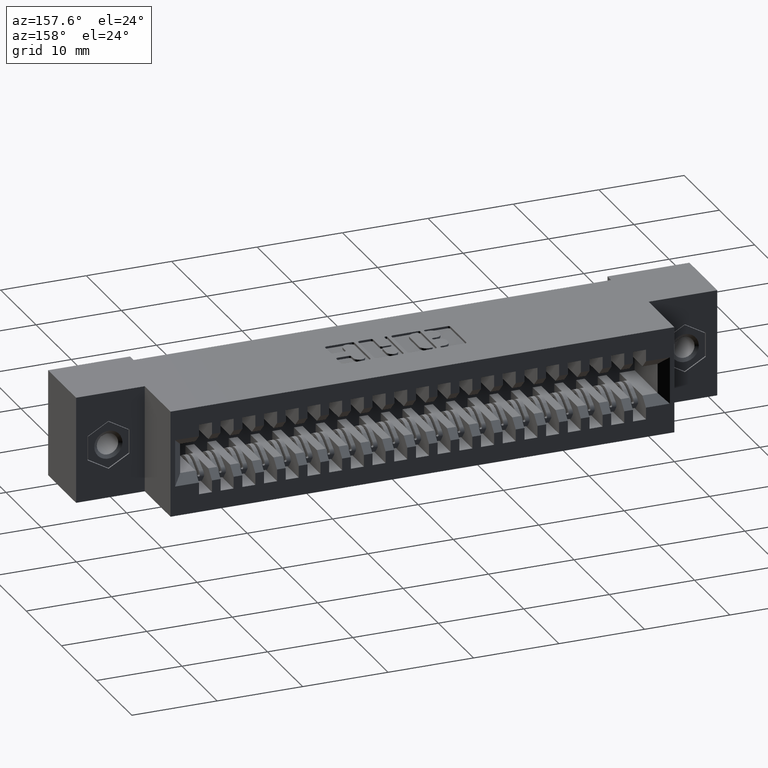
[diagram: clean part render]
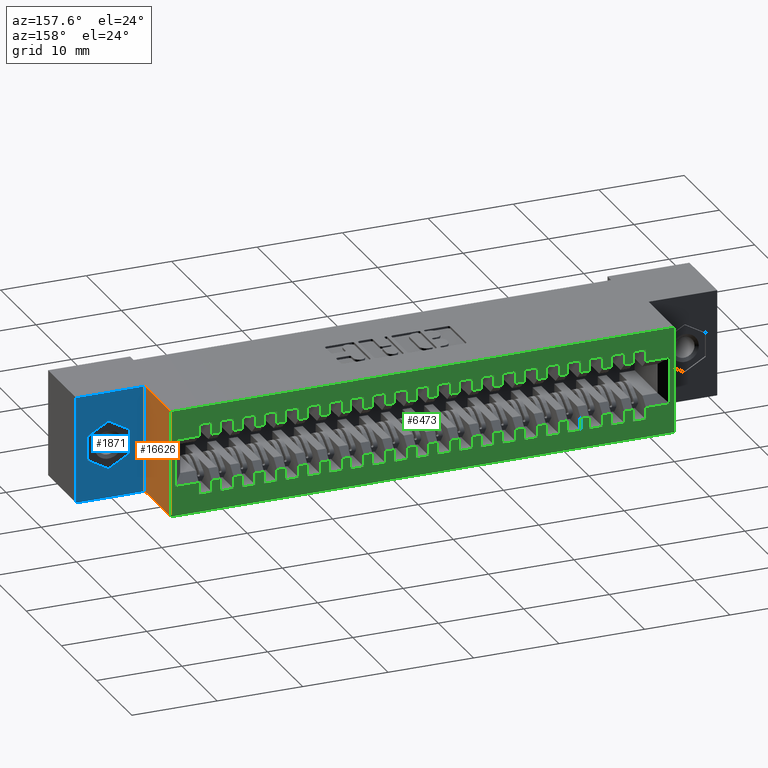
[diagram: same view with three faces highlighted in distinct colors, each labeled with its STEP entity id]
A machine part, auxiliary view with three faces highlighted in distinct colors.
Their STEP definitions:

[orange] entity #16626 — the highlighted planar face has unit normal (-1, 0, 0).
#527 = DIRECTION ( 'NONE',  ( -0.0000000000000000000, 1.000000000000000000, -0.0000000000000000000 ) ) ;
#633 = LINE ( 'NONE', #3114, #5272 ) ;
#1282 = CARTESIAN_POINT ( 'NONE',  ( 2.638499999999999600, 0.3120000000000000000, -0.4900000000000004400 ) ) ;
#1392 = LINE ( 'NONE', #15129, #11885 ) ;
#1519 = ORIENTED_EDGE ( 'NONE', *, *, #15977, .F. ) ;
#2017 = VERTEX_POINT ( 'NONE', #13416 ) ;
#3114 = CARTESIAN_POINT ( 'NONE',  ( 2.638500000000000100, 0.3120000000000000000, -3.037430223585222600E-016 ) ) ;
#3603 = FACE_OUTER_BOUND ( 'NONE', #7279, .T. ) ;
#3638 = VECTOR ( 'NONE', #13290, 39.37007874015748100 ) ;
#3768 = ORIENTED_EDGE ( 'NONE', *, *, #10173, .T. ) ;
#5272 = VECTOR ( 'NONE', #527, 39.37007874015748100 ) ;
#5424 = DIRECTION ( 'NONE',  ( -0.0000000000000000000, 1.000000000000000000, -0.0000000000000000000 ) ) ;
#6146 = LINE ( 'NONE', #12023, #11806 ) ;
#7186 = EDGE_CURVE ( 'NONE', #8110, #2017, #6146, .T. ) ;
#7279 = EDGE_LOOP ( 'NONE', ( #3768, #8600, #1519, #15311 ) ) ;
#8110 = VERTEX_POINT ( 'NONE', #1282 ) ;
#8600 = ORIENTED_EDGE ( 'NONE', *, *, #9603, .F. ) ;
#8630 = DIRECTION ( 'NONE',  ( -1.000000000000000000, 0.0000000000000000000, 1.115039997413984500E-015 ) ) ;
#8873 = AXIS2_PLACEMENT_3D ( 'NONE', #9973, #8630, #9918 ) ;
#9603 = EDGE_CURVE ( 'NONE', #13858, #12597, #633, .T. ) ;
#9918 = DIRECTION ( 'NONE',  ( 1.115039997413984500E-015, 0.0000000000000000000, 1.000000000000000000 ) ) ;
#9973 = CARTESIAN_POINT ( 'NONE',  ( 2.638499999999999600, 0.3120000000000000000, -0.4900000000000004400 ) ) ;
#10173 = EDGE_CURVE ( 'NONE', #2017, #12597, #11921, .T. ) ;
#11806 = VECTOR ( 'NONE', #5424, 39.37007874015748100 ) ;
#11885 = VECTOR ( 'NONE', #12462, 39.37007874015748100 ) ;
#11921 = LINE ( 'NONE', #14569, #3638 ) ;
#12023 = CARTESIAN_POINT ( 'NONE',  ( 2.638499999999999600, 0.3120000000000000000, -0.4900000000000004400 ) ) ;
#12462 = DIRECTION ( 'NONE',  ( 1.115039997413984600E-015, 0.0000000000000000000, 1.000000000000000000 ) ) ;
#12557 = PLANE ( 'NONE',  #8873 ) ;
#12597 = VERTEX_POINT ( 'NONE', #13146 ) ;
#13146 = CARTESIAN_POINT ( 'NONE',  ( 2.638500000000000100, 0.5999999999999999800, -3.037430223585222600E-016 ) ) ;
#13290 = DIRECTION ( 'NONE',  ( 1.115039997413984600E-015, 0.0000000000000000000, 1.000000000000000000 ) ) ;
#13416 = CARTESIAN_POINT ( 'NONE',  ( 2.638499999999999600, 0.5999999999999999800, -0.4899999999999999900 ) ) ;
#13858 = VERTEX_POINT ( 'NONE', #14289 ) ;
#14289 = CARTESIAN_POINT ( 'NONE',  ( 2.638500000000000100, 0.3120000000000000000, -3.037430223585222600E-016 ) ) ;
#14569 = CARTESIAN_POINT ( 'NONE',  ( 2.638499999999999600, 0.5999999999999999800, -0.4900000000000004400 ) ) ;
#15129 = CARTESIAN_POINT ( 'NONE',  ( 2.638499999999999600, 0.3120000000000000000, -0.4900000000000004400 ) ) ;
#15311 = ORIENTED_EDGE ( 'NONE', *, *, #7186, .T. ) ;
#15977 = EDGE_CURVE ( 'NONE', #8110, #13858, #1392, .T. ) ;
#16626 = ADVANCED_FACE ( 'NONE', ( #3603 ), #12557, .F. ) ;

[blue] entity #1871 — the highlighted planar face has unit normal (0, 1, 0).
#147 = EDGE_CURVE ( 'NONE', #13611, #8611, #8381, .T. ) ;
#664 = VECTOR ( 'NONE', #1796, 39.37007874015748900 ) ;
#707 = CARTESIAN_POINT ( 'NONE',  ( 2.902000000000001000, 0.3120000000000000000, -0.3007143009767991900 ) ) ;
#834 = EDGE_CURVE ( 'NONE', #4811, #8110, #5967, .T. ) ;
#961 = ORIENTED_EDGE ( 'NONE', *, *, #8473, .F. ) ;
#995 = ORIENTED_EDGE ( 'NONE', *, *, #147, .F. ) ;
#1055 = ORIENTED_EDGE ( 'NONE', *, *, #13198, .F. ) ;
#1282 = CARTESIAN_POINT ( 'NONE',  ( 2.638499999999999600, 0.3120000000000000000, -0.4900000000000004400 ) ) ;
#1392 = LINE ( 'NONE', #15129, #11885 ) ;
#1796 = DIRECTION ( 'NONE',  ( 0.8660254037844384900, -0.0000000000000000000, 0.5000000000000001100 ) ) ;
#1871 = ADVANCED_FACE ( 'NONE', ( #16139, #11315 ), #15318, .T. ) ;
#2189 = DIRECTION ( 'NONE',  ( 0.8660254037844397100, -0.0000000000000000000, -0.4999999999999980000 ) ) ;
#2294 = VECTOR ( 'NONE', #2189, 39.37007874015748100 ) ;
#2384 = EDGE_LOOP ( 'NONE', ( #6272, #16230, #7498, #8390 ) ) ;
#2459 = CARTESIAN_POINT ( 'NONE',  ( 2.955000000000000100, 0.3120000000000000000, 0.0000000000000000000 ) ) ;
#2596 = CARTESIAN_POINT ( 'NONE',  ( 2.709000000000000500, 0.3120000000000000000, -0.1892856990232014400 ) ) ;
#2889 = CARTESIAN_POINT ( 'NONE',  ( 2.709000000000000500, 0.3120000000000000000, -0.3007143009767991900 ) ) ;
#3124 = CARTESIAN_POINT ( 'NONE',  ( 2.955000000000000100, 0.3120000000000000000, -0.4899999999999999900 ) ) ;
#3565 = EDGE_LOOP ( 'NONE', ( #1055, #995, #15231, #15505, #5714, #961 ) ) ;
#4590 = VECTOR ( 'NONE', #13437, 39.37007874015748100 ) ;
#4811 = VERTEX_POINT ( 'NONE', #10610 ) ;
#4866 = DIRECTION ( 'NONE',  ( 0.0000000000000000000, 0.0000000000000000000, 1.000000000000000000 ) ) ;
#4985 = VECTOR ( 'NONE', #6751, 39.37007874015748900 ) ;
#5347 = VECTOR ( 'NONE', #11480, 39.37007874015748100 ) ;
#5714 = ORIENTED_EDGE ( 'NONE', *, *, #7577, .F. ) ;
#5958 = CARTESIAN_POINT ( 'NONE',  ( 2.955000000000000100, 0.3120000000000000000, -0.4899999999999999900 ) ) ;
#5967 = LINE ( 'NONE', #5958, #5347 ) ;
#6272 = ORIENTED_EDGE ( 'NONE', *, *, #834, .T. ) ;
#6420 = CARTESIAN_POINT ( 'NONE',  ( 2.805500000000000300, 0.3120000000000000000, -0.1335713980464025800 ) ) ;
#6548 = EDGE_CURVE ( 'NONE', #8082, #4811, #16584, .T. ) ;
#6575 = LINE ( 'NONE', #707, #4590 ) ;
#6751 = DIRECTION ( 'NONE',  ( -0.8660254037844386000, -0.0000000000000000000, 0.5000000000000000000 ) ) ;
#6902 = EDGE_CURVE ( 'NONE', #15053, #13243, #6575, .T. ) ;
#7095 = CARTESIAN_POINT ( 'NONE',  ( 2.902000000000001000, 0.3120000000000000000, -0.1892856990232014400 ) ) ;
#7312 = LINE ( 'NONE', #10105, #14966 ) ;
#7498 = ORIENTED_EDGE ( 'NONE', *, *, #13740, .T. ) ;
#7577 = EDGE_CURVE ( 'NONE', #13163, #15053, #8144, .T. ) ;
#8082 = VERTEX_POINT ( 'NONE', #2459 ) ;
#8110 = VERTEX_POINT ( 'NONE', #1282 ) ;
#8144 = LINE ( 'NONE', #8663, #2294 ) ;
#8381 = LINE ( 'NONE', #2889, #4985 ) ;
#8390 = ORIENTED_EDGE ( 'NONE', *, *, #6548, .T. ) ;
#8473 = EDGE_CURVE ( 'NONE', #13344, #13163, #16564, .T. ) ;
#8611 = VERTEX_POINT ( 'NONE', #12572 ) ;
#8663 = CARTESIAN_POINT ( 'NONE',  ( 2.902000000000001000, 0.3120000000000000000, -0.1892856990232014400 ) ) ;
#8699 = DIRECTION ( 'NONE',  ( 1.000000000000000000, -0.0000000000000000000, 9.596935935498340000E-016 ) ) ;
#8805 = EDGE_CURVE ( 'NONE', #13243, #13611, #10495, .T. ) ;
#8832 = CARTESIAN_POINT ( 'NONE',  ( 2.638499999999999600, 0.3120000000000000000, -0.4900000000000004400 ) ) ;
#9223 = VECTOR ( 'NONE', #15540, 39.37007874015748100 ) ;
#9686 = VECTOR ( 'NONE', #11651, 39.37007874015748900 ) ;
#10105 = CARTESIAN_POINT ( 'NONE',  ( 2.955000000000000100, 0.3120000000000000000, 0.0000000000000000000 ) ) ;
#10495 = LINE ( 'NONE', #12884, #9686 ) ;
#10610 = CARTESIAN_POINT ( 'NONE',  ( 2.955000000000000100, 0.3120000000000000000, -0.4899999999999999900 ) ) ;
#10962 = CARTESIAN_POINT ( 'NONE',  ( 2.805500000000000300, 0.3120000000000000000, -0.1335713980464025800 ) ) ;
#11052 = AXIS2_PLACEMENT_3D ( 'NONE', #8832, #11338, #4866 ) ;
#11315 = FACE_OUTER_BOUND ( 'NONE', #2384, .T. ) ;
#11338 = DIRECTION ( 'NONE',  ( 0.0000000000000000000, 1.000000000000000000, -0.0000000000000000000 ) ) ;
#11480 = DIRECTION ( 'NONE',  ( -1.000000000000000000, 0.0000000000000000000, -1.510500470430475800E-015 ) ) ;
#11505 = CARTESIAN_POINT ( 'NONE',  ( 2.902000000000001000, 0.3120000000000000000, -0.3007143009767991900 ) ) ;
#11651 = DIRECTION ( 'NONE',  ( -0.8660254037844399300, -0.0000000000000000000, -0.4999999999999976700 ) ) ;
#11885 = VECTOR ( 'NONE', #12462, 39.37007874015748100 ) ;
#11953 = CARTESIAN_POINT ( 'NONE',  ( 2.709000000000000500, 0.3120000000000000000, -0.1892856990232014100 ) ) ;
#12462 = DIRECTION ( 'NONE',  ( 1.115039997413984600E-015, 0.0000000000000000000, 1.000000000000000000 ) ) ;
#12572 = CARTESIAN_POINT ( 'NONE',  ( 2.709000000000000500, 0.3120000000000000000, -0.3007143009767991900 ) ) ;
#12884 = CARTESIAN_POINT ( 'NONE',  ( 2.805500000000000300, 0.3120000000000000000, -0.3564286019535979900 ) ) ;
#13163 = VERTEX_POINT ( 'NONE', #6420 ) ;
#13198 = EDGE_CURVE ( 'NONE', #8611, #13344, #14708, .T. ) ;
#13243 = VERTEX_POINT ( 'NONE', #11505 ) ;
#13344 = VERTEX_POINT ( 'NONE', #11953 ) ;
#13380 = DIRECTION ( 'NONE',  ( -0.0000000000000000000, -0.0000000000000000000, -1.000000000000000000 ) ) ;
#13437 = DIRECTION ( 'NONE',  ( -0.0000000000000000000, -0.0000000000000000000, -1.000000000000000000 ) ) ;
#13611 = VERTEX_POINT ( 'NONE', #14955 ) ;
#13740 = EDGE_CURVE ( 'NONE', #13858, #8082, #7312, .T. ) ;
#13858 = VERTEX_POINT ( 'NONE', #14289 ) ;
#13966 = VECTOR ( 'NONE', #13380, 39.37007874015748100 ) ;
#14289 = CARTESIAN_POINT ( 'NONE',  ( 2.638500000000000100, 0.3120000000000000000, -3.037430223585222600E-016 ) ) ;
#14708 = LINE ( 'NONE', #2596, #9223 ) ;
#14955 = CARTESIAN_POINT ( 'NONE',  ( 2.805500000000000300, 0.3120000000000000000, -0.3564286019535979900 ) ) ;
#14966 = VECTOR ( 'NONE', #8699, 39.37007874015748100 ) ;
#15053 = VERTEX_POINT ( 'NONE', #7095 ) ;
#15129 = CARTESIAN_POINT ( 'NONE',  ( 2.638499999999999600, 0.3120000000000000000, -0.4900000000000004400 ) ) ;
#15231 = ORIENTED_EDGE ( 'NONE', *, *, #8805, .F. ) ;
#15318 = PLANE ( 'NONE',  #11052 ) ;
#15505 = ORIENTED_EDGE ( 'NONE', *, *, #6902, .F. ) ;
#15540 = DIRECTION ( 'NONE',  ( -0.0000000000000000000, -0.0000000000000000000, 1.000000000000000000 ) ) ;
#15977 = EDGE_CURVE ( 'NONE', #8110, #13858, #1392, .T. ) ;
#16139 = FACE_BOUND ( 'NONE', #3565, .T. ) ;
#16230 = ORIENTED_EDGE ( 'NONE', *, *, #15977, .T. ) ;
#16564 = LINE ( 'NONE', #10962, #664 ) ;
#16584 = LINE ( 'NONE', #3124, #13966 ) ;

[green] entity #6473 — the highlighted planar face has unit normal (0, -1, 0).
#17 = DIRECTION ( 'NONE',  ( -0.0000000000000000000, -0.0000000000000000000, 1.000000000000000000 ) ) ;
#23 = CARTESIAN_POINT ( 'NONE',  ( 2.007500000000000300, 0.5999999999999999800, -0.1770000000000001300 ) ) ;
#41 = VECTOR ( 'NONE', #14886, 39.37007874015748100 ) ;
#47 = ORIENTED_EDGE ( 'NONE', *, *, #11477, .T. ) ;
#48 = LINE ( 'NONE', #8410, #16371 ) ;
#80 = LINE ( 'NONE', #5690, #8919 ) ;
#91 = VERTEX_POINT ( 'NONE', #13500 ) ;
#94 = CARTESIAN_POINT ( 'NONE',  ( 2.147500000000000400, 0.5999999999999999800, -0.4075000000000001400 ) ) ;
#100 = CARTESIAN_POINT ( 'NONE',  ( 0.4475000000000000600, 0.5999999999999999800, -0.3529999999999999800 ) ) ;
#103 = LINE ( 'NONE', #3274, #1510 ) ;
#109 = EDGE_CURVE ( 'NONE', #709, #12499, #2958, .T. ) ;
#125 = CARTESIAN_POINT ( 'NONE',  ( 1.647500000000000200, 0.5999999999999999800, -0.4075000000000000800 ) ) ;
#139 = ORIENTED_EDGE ( 'NONE', *, *, #14756, .T. ) ;
#142 = DIRECTION ( 'NONE',  ( -0.0000000000000000000, -0.0000000000000000000, 1.000000000000000000 ) ) ;
#146 = DIRECTION ( 'NONE',  ( -0.0000000000000000000, -0.0000000000000000000, 1.000000000000000000 ) ) ;
#152 = LINE ( 'NONE', #16160, #12670 ) ;
#158 = ORIENTED_EDGE ( 'NONE', *, *, #5531, .T. ) ;
#172 = ORIENTED_EDGE ( 'NONE', *, *, #13523, .F. ) ;
#179 = EDGE_CURVE ( 'NONE', #4539, #15189, #11841, .T. ) ;
#188 = CARTESIAN_POINT ( 'NONE',  ( 0.0000000000000000000, 0.5999999999999999800, -0.1370000000000002600 ) ) ;
#205 = VERTEX_POINT ( 'NONE', #7943 ) ;
#213 = CARTESIAN_POINT ( 'NONE',  ( 1.947500000000000200, 0.5999999999999999800, -0.3130000000000002800 ) ) ;
#221 = ORIENTED_EDGE ( 'NONE', *, *, #3998, .F. ) ;
#225 = ORIENTED_EDGE ( 'NONE', *, *, #9821, .T. ) ;
#243 = EDGE_CURVE ( 'NONE', #3463, #5776, #6967, .T. ) ;
#250 = CARTESIAN_POINT ( 'NONE',  ( 1.547500000000000300, 0.5999999999999999800, -0.3130000000000001700 ) ) ;
#274 = LINE ( 'NONE', #8481, #5125 ) ;
#279 = EDGE_CURVE ( 'NONE', #6413, #818, #5579, .T. ) ;
#302 = VERTEX_POINT ( 'NONE', #1455 ) ;
#313 = VERTEX_POINT ( 'NONE', #5406 ) ;
#328 = CARTESIAN_POINT ( 'NONE',  ( 2.347500000000000100, 0.5999999999999999800, -0.08250000000000026800 ) ) ;
#342 = VECTOR ( 'NONE', #13918, 39.37007874015748100 ) ;
#354 = EDGE_LOOP ( 'NONE', ( #158, #9643, #9172, #6181 ) ) ;
#360 = EDGE_CURVE ( 'NONE', #12859, #15191, #7368, .T. ) ;
#367 = VERTEX_POINT ( 'NONE', #12497 ) ;
#369 = CARTESIAN_POINT ( 'NONE',  ( 1.507500000000000300, 0.5999999999999999800, -0.4075000000000000800 ) ) ;
#371 = EDGE_CURVE ( 'NONE', #7255, #7420, #534, .T. ) ;
#373 = VERTEX_POINT ( 'NONE', #14989 ) ;
#376 = CARTESIAN_POINT ( 'NONE',  ( 0.5475000000000001000, 0.5999999999999999800, -0.1769999999999999100 ) ) ;
#384 = CARTESIAN_POINT ( 'NONE',  ( 0.5075000000000000600, 0.5999999999999999800, -0.1370000000000002600 ) ) ;
#394 = VERTEX_POINT ( 'NONE', #13769 ) ;
#395 = DIRECTION ( 'NONE',  ( 1.000000000000000000, 0.0000000000000000000, 0.0000000000000000000 ) ) ;
#429 = CARTESIAN_POINT ( 'NONE',  ( 0.6474999999999999600, 0.5999999999999999800, -0.3529999999999999800 ) ) ;
#438 = EDGE_CURVE ( 'NONE', #4979, #91, #11410, .T. ) ;
#442 = CARTESIAN_POINT ( 'NONE',  ( 2.107499999999999900, 0.5999999999999999800, -0.4075000000000001400 ) ) ;
#449 = CARTESIAN_POINT ( 'NONE',  ( 1.047499999999999900, 0.5999999999999999800, -0.1769999999999999900 ) ) ;
#454 = EDGE_CURVE ( 'NONE', #3018, #15760, #5363, .T. ) ;
#476 = CARTESIAN_POINT ( 'NONE',  ( 1.947500000000000200, 0.5999999999999999800, -0.4075000000000001400 ) ) ;
#478 = VECTOR ( 'NONE', #3251, 39.37007874015748100 ) ;
#485 = ORIENTED_EDGE ( 'NONE', *, *, #5883, .T. ) ;
#503 = LINE ( 'NONE', #10283, #13400 ) ;
#513 = DIRECTION ( 'NONE',  ( 0.0000000000000000000, 0.0000000000000000000, 1.000000000000000000 ) ) ;
#533 = DIRECTION ( 'NONE',  ( -0.0000000000000000000, -0.0000000000000000000, 1.000000000000000000 ) ) ;
#534 = LINE ( 'NONE', #13863, #14014 ) ;
#554 = CARTESIAN_POINT ( 'NONE',  ( 1.347500000000000400, 0.5999999999999999800, -0.08250000000000012900 ) ) ;
#576 = CARTESIAN_POINT ( 'NONE',  ( 0.3375000000000001300, 0.5999999999999999800, -0.4899999999999999900 ) ) ;
#579 = VECTOR ( 'NONE', #146, 39.37007874015748100 ) ;
#611 = VERTEX_POINT ( 'NONE', #5426 ) ;
#671 = ORIENTED_EDGE ( 'NONE', *, *, #1688, .T. ) ;
#675 = VERTEX_POINT ( 'NONE', #2718 ) ;
#676 = CARTESIAN_POINT ( 'NONE',  ( 0.0000000000000000000, 0.5999999999999999800, -0.1370000000000002600 ) ) ;
#684 = EDGE_CURVE ( 'NONE', #7191, #1664, #8168, .T. ) ;
#697 = LINE ( 'NONE', #16092, #8534 ) ;
#708 = CARTESIAN_POINT ( 'NONE',  ( 1.947500000000000200, 0.5999999999999999800, -0.4075000000000001400 ) ) ;
#709 = VERTEX_POINT ( 'NONE', #3001 ) ;
#717 = VECTOR ( 'NONE', #13126, 39.37007874015748100 ) ;
#724 = LINE ( 'NONE', #12934, #13429 ) ;
#738 = EDGE_CURVE ( 'NONE', #7337, #3065, #15416, .T. ) ;
#742 = CARTESIAN_POINT ( 'NONE',  ( 1.447500000000000200, 0.5999999999999999800, -0.3130000000000001700 ) ) ;
#751 = VECTOR ( 'NONE', #8242, 39.37007874015748100 ) ;
#774 = ORIENTED_EDGE ( 'NONE', *, *, #5828, .T. ) ;
#783 = CARTESIAN_POINT ( 'NONE',  ( 2.507499999999999800, 0.5999999999999999800, -0.3529999999999999800 ) ) ;
#794 = PLANE ( 'NONE',  #14508 ) ;
#798 = ORIENTED_EDGE ( 'NONE', *, *, #2150, .T. ) ;
#799 = CARTESIAN_POINT ( 'NONE',  ( 0.9075000000000000800, 0.5999999999999999800, -0.3529999999999999800 ) ) ;
#809 = EDGE_CURVE ( 'NONE', #302, #8665, #3532, .T. ) ;
#818 = VERTEX_POINT ( 'NONE', #15007 ) ;
#821 = VECTOR ( 'NONE', #3967, 39.37007874015748100 ) ;
#837 = VECTOR ( 'NONE', #4801, 39.37007874015748100 ) ;
#838 = LINE ( 'NONE', #6371, #14140 ) ;
#853 = CARTESIAN_POINT ( 'NONE',  ( 1.047499999999999900, 0.5999999999999999800, -0.3529999999999999800 ) ) ;
#864 = DIRECTION ( 'NONE',  ( -0.0000000000000000000, -0.0000000000000000000, 1.000000000000000000 ) ) ;
#868 = DIRECTION ( 'NONE',  ( 1.000000000000000000, -0.0000000000000000000, -0.0000000000000000000 ) ) ;
#892 = VECTOR ( 'NONE', #5374, 39.37007874015748100 ) ;
#931 = ORIENTED_EDGE ( 'NONE', *, *, #4787, .F. ) ;
#939 = ORIENTED_EDGE ( 'NONE', *, *, #16272, .F. ) ;
#945 = LINE ( 'NONE', #5561, #15453 ) ;
#946 = ORIENTED_EDGE ( 'NONE', *, *, #5088, .T. ) ;
#951 = ORIENTED_EDGE ( 'NONE', *, *, #438, .T. ) ;
#978 = CARTESIAN_POINT ( 'NONE',  ( 1.007500000000000100, 0.5999999999999999800, -0.3130000000000001100 ) ) ;
#985 = DIRECTION ( 'NONE',  ( 1.000000000000000000, -0.0000000000000000000, -0.0000000000000000000 ) ) ;
#1017 = LINE ( 'NONE', #10932, #12936 ) ;
#1020 = ORIENTED_EDGE ( 'NONE', *, *, #14975, .T. ) ;
#1023 = ORIENTED_EDGE ( 'NONE', *, *, #2697, .T. ) ;
#1034 = EDGE_CURVE ( 'NONE', #7806, #6841, #14121, .T. ) ;
#1061 = DIRECTION ( 'NONE',  ( 1.000000000000000000, 0.0000000000000000000, 0.0000000000000000000 ) ) ;
#1069 = VERTEX_POINT ( 'NONE', #12913 ) ;
#1090 = CARTESIAN_POINT ( 'NONE',  ( 1.347500000000000400, 0.5999999999999999800, -0.1370000000000002600 ) ) ;
#1107 = DIRECTION ( 'NONE',  ( 1.000000000000000000, 0.0000000000000000000, 0.0000000000000000000 ) ) ;
#1113 = VECTOR ( 'NONE', #10869, 39.37007874015748100 ) ;
#1122 = VERTEX_POINT ( 'NONE', #12805 ) ;
#1134 = ORIENTED_EDGE ( 'NONE', *, *, #9799, .F. ) ;
#1159 = ORIENTED_EDGE ( 'NONE', *, *, #2939, .T. ) ;
#1176 = VERTEX_POINT ( 'NONE', #11435 ) ;
#1179 = VERTEX_POINT ( 'NONE', #5022 ) ;
#1201 = CARTESIAN_POINT ( 'NONE',  ( 1.207500000000000000, 0.5999999999999999800, -0.3130000000000001100 ) ) ;
#1218 = ORIENTED_EDGE ( 'NONE', *, *, #14956, .F. ) ;
#1245 = VECTOR ( 'NONE', #10712, 39.37007874015748100 ) ;
#1302 = DIRECTION ( 'NONE',  ( 1.000000000000000000, -0.0000000000000000000, -0.0000000000000000000 ) ) ;
#1321 = DIRECTION ( 'NONE',  ( -0.0000000000000000000, -0.0000000000000000000, 1.000000000000000000 ) ) ;
#1324 = LINE ( 'NONE', #13075, #14607 ) ;
#1332 = DIRECTION ( 'NONE',  ( -1.000000000000000000, 0.0000000000000000000, 0.0000000000000000000 ) ) ;
#1356 = DIRECTION ( 'NONE',  ( 1.000000000000000000, -0.0000000000000000000, -0.0000000000000000000 ) ) ;
#1365 = ORIENTED_EDGE ( 'NONE', *, *, #9702, .T. ) ;
#1379 = EDGE_CURVE ( 'NONE', #13941, #15340, #14155, .T. ) ;
#1400 = CARTESIAN_POINT ( 'NONE',  ( 2.407500000000000200, 0.5999999999999999800, -0.4075000000000002500 ) ) ;
#1420 = VECTOR ( 'NONE', #533, 39.37007874015748100 ) ;
#1431 = EDGE_CURVE ( 'NONE', #2017, #13406, #6297, .T. ) ;
#1440 = ORIENTED_EDGE ( 'NONE', *, *, #6726, .T. ) ;
#1447 = VERTEX_POINT ( 'NONE', #1090 ) ;
#1455 = CARTESIAN_POINT ( 'NONE',  ( 1.847500000000000100, 0.5999999999999999800, -0.4075000000000001400 ) ) ;
#1460 = CARTESIAN_POINT ( 'NONE',  ( 1.647500000000000200, 0.5999999999999999800, -0.08250000000000015700 ) ) ;
#1464 = VECTOR ( 'NONE', #8016, 39.37007874015748100 ) ;
#1477 = FACE_OUTER_BOUND ( 'NONE', #354, .T. ) ;
#1508 = LINE ( 'NONE', #4060, #11204 ) ;
#1510 = VECTOR ( 'NONE', #4642, 39.37007874015748100 ) ;
#1513 = CARTESIAN_POINT ( 'NONE',  ( 2.347500000000000100, 0.5999999999999999800, -0.1370000000000002600 ) ) ;
#1521 = EDGE_CURVE ( 'NONE', #7415, #10344, #1646, .T. ) ;
#1523 = DIRECTION ( 'NONE',  ( 0.0000000000000000000, 0.0000000000000000000, 1.000000000000000000 ) ) ;
#1529 = VECTOR ( 'NONE', #4248, 39.37007874015748100 ) ;
#1531 = EDGE_CURVE ( 'NONE', #2180, #373, #8876, .T. ) ;
#1543 = CARTESIAN_POINT ( 'NONE',  ( 0.9475000000000001200, 0.5999999999999999800, -0.3529999999999999800 ) ) ;
#1572 = VERTEX_POINT ( 'NONE', #5164 ) ;
#1582 = CARTESIAN_POINT ( 'NONE',  ( 1.747500000000000100, 0.5999999999999999800, -0.4075000000000000800 ) ) ;
#1596 = DIRECTION ( 'NONE',  ( -1.393799996767481300E-016, -0.0000000000000000000, -1.000000000000000000 ) ) ;
#1599 = VECTOR ( 'NONE', #16072, 39.37007874015748100 ) ;
#1606 = VERTEX_POINT ( 'NONE', #14226 ) ;
#1610 = VECTOR ( 'NONE', #4278, 39.37007874015748100 ) ;
#1646 = LINE ( 'NONE', #8690, #16550 ) ;
#1664 = VERTEX_POINT ( 'NONE', #11761 ) ;
#1672 = LINE ( 'NONE', #14001, #8116 ) ;
#1687 = DIRECTION ( 'NONE',  ( 1.000000000000000000, -0.0000000000000000000, -0.0000000000000000000 ) ) ;
#1688 = EDGE_CURVE ( 'NONE', #10205, #12898, #3257, .T. ) ;
#1698 = ORIENTED_EDGE ( 'NONE', *, *, #1531, .F. ) ;
#1705 = VERTEX_POINT ( 'NONE', #1543 ) ;
#1706 = CARTESIAN_POINT ( 'NONE',  ( 0.5475000000000001000, 0.5999999999999999800, -0.08250000000000003200 ) ) ;
#1716 = DIRECTION ( 'NONE',  ( 0.0000000000000000000, 0.0000000000000000000, 1.000000000000000000 ) ) ;
#1763 = VERTEX_POINT ( 'NONE', #2198 ) ;
#1767 = DIRECTION ( 'NONE',  ( 0.0000000000000000000, 0.0000000000000000000, 1.000000000000000000 ) ) ;
#1782 = CARTESIAN_POINT ( 'NONE',  ( 0.7475000000000000500, 0.5999999999999999800, -0.3130000000000001100 ) ) ;
#1783 = ORIENTED_EDGE ( 'NONE', *, *, #2082, .T. ) ;
#1805 = EDGE_CURVE ( 'NONE', #12772, #13495, #838, .T. ) ;
#1806 = ORIENTED_EDGE ( 'NONE', *, *, #1521, .T. ) ;
#1821 = CARTESIAN_POINT ( 'NONE',  ( 0.7475000000000000500, 0.5999999999999999800, -0.1370000000000002600 ) ) ;
#1833 = ORIENTED_EDGE ( 'NONE', *, *, #6948, .F. ) ;
#1848 = CARTESIAN_POINT ( 'NONE',  ( 1.547500000000000300, 0.5999999999999999800, -0.4075000000000000800 ) ) ;
#1860 = VECTOR ( 'NONE', #1061, 39.37007874015748100 ) ;
#1895 = CARTESIAN_POINT ( 'NONE',  ( 1.207500000000000000, 0.5999999999999999800, -0.1370000000000002600 ) ) ;
#1923 = ORIENTED_EDGE ( 'NONE', *, *, #5365, .T. ) ;
#1933 = CARTESIAN_POINT ( 'NONE',  ( 0.0000000000000000000, 0.5999999999999999800, -0.1370000000000002600 ) ) ;
#1936 = DIRECTION ( 'NONE',  ( 0.0000000000000000000, 0.0000000000000000000, 1.000000000000000000 ) ) ;
#1942 = ORIENTED_EDGE ( 'NONE', *, *, #16546, .F. ) ;
#1961 = CARTESIAN_POINT ( 'NONE',  ( 0.9475000000000001200, 0.5999999999999999800, -0.4075000000000000300 ) ) ;
#1989 = CARTESIAN_POINT ( 'NONE',  ( 2.347500000000000100, 0.5999999999999999800, -0.08250000000000026800 ) ) ;
#1993 = CARTESIAN_POINT ( 'NONE',  ( 1.747500000000000100, 0.5999999999999999800, -0.1370000000000002600 ) ) ;
#2013 = EDGE_CURVE ( 'NONE', #16339, #4195, #6078, .T. ) ;
#2017 = VERTEX_POINT ( 'NONE', #13416 ) ;
#2030 = CARTESIAN_POINT ( 'NONE',  ( 1.507500000000000300, 0.5999999999999999800, -0.08250000000000014300 ) ) ;
#2068 = ORIENTED_EDGE ( 'NONE', *, *, #5868, .F. ) ;
#2070 = VERTEX_POINT ( 'NONE', #13973 ) ;
#2082 = EDGE_CURVE ( 'NONE', #6696, #13441, #2231, .T. ) ;
#2136 = CARTESIAN_POINT ( 'NONE',  ( 2.147500000000000400, 0.5999999999999999800, -0.3130000000000002800 ) ) ;
#2138 = VERTEX_POINT ( 'NONE', #7679 ) ;
#2140 = CARTESIAN_POINT ( 'NONE',  ( 0.0000000000000000000, 0.5999999999999999800, -0.1370000000000002600 ) ) ;
#2149 = ORIENTED_EDGE ( 'NONE', *, *, #7408, .F. ) ;
#2150 = EDGE_CURVE ( 'NONE', #3258, #8021, #5259, .T. ) ;
#2155 = CARTESIAN_POINT ( 'NONE',  ( 1.947500000000000200, 0.5999999999999999800, -0.08250000000000019800 ) ) ;
#2157 = EDGE_CURVE ( 'NONE', #6757, #1179, #3225, .T. ) ;
#2173 = EDGE_CURVE ( 'NONE', #10891, #10212, #11714, .T. ) ;
#2180 = VERTEX_POINT ( 'NONE', #13430 ) ;
#2198 = CARTESIAN_POINT ( 'NONE',  ( 1.007500000000000100, 0.5999999999999999800, -0.1370000000000002600 ) ) ;
#2202 = ORIENTED_EDGE ( 'NONE', *, *, #11302, .T. ) ;
#2209 = DIRECTION ( 'NONE',  ( -0.0000000000000000000, -0.0000000000000000000, 1.000000000000000000 ) ) ;
#2220 = CARTESIAN_POINT ( 'NONE',  ( 1.847500000000000100, 0.5999999999999999800, -0.3130000000000002800 ) ) ;
#2221 = VERTEX_POINT ( 'NONE', #799 ) ;
#2231 = LINE ( 'NONE', #3553, #15538 ) ;
#2233 = CARTESIAN_POINT ( 'NONE',  ( 1.147500000000000000, 0.5999999999999999800, -0.08250000000000008700 ) ) ;
#2237 = ORIENTED_EDGE ( 'NONE', *, *, #8324, .T. ) ;
#2242 = LINE ( 'NONE', #2136, #13932 ) ;
#2247 = ORIENTED_EDGE ( 'NONE', *, *, #9214, .F. ) ;
#2263 = LINE ( 'NONE', #4870, #8703 ) ;
#2281 = CARTESIAN_POINT ( 'NONE',  ( 0.5075000000000000600, 0.5999999999999999800, -0.08250000000000000400 ) ) ;
#2290 = VECTOR ( 'NONE', #10454, 39.37007874015748100 ) ;
#2293 = ORIENTED_EDGE ( 'NONE', *, *, #14897, .T. ) ;
#2296 = LINE ( 'NONE', #5813, #9124 ) ;
#2300 = ORIENTED_EDGE ( 'NONE', *, *, #8329, .T. ) ;
#2322 = DIRECTION ( 'NONE',  ( 1.000000000000000000, -0.0000000000000000000, -0.0000000000000000000 ) ) ;
#2364 = CARTESIAN_POINT ( 'NONE',  ( 1.607500000000000400, 0.5999999999999999800, -0.3130000000000001700 ) ) ;
#2365 = CARTESIAN_POINT ( 'NONE',  ( 0.0000000000000000000, 0.5999999999999999800, -0.3529999999999999800 ) ) ;
#2369 = VERTEX_POINT ( 'NONE', #783 ) ;
#2371 = EDGE_CURVE ( 'NONE', #16395, #8665, #12131, .T. ) ;
#2373 = DIRECTION ( 'NONE',  ( 0.0000000000000000000, 0.0000000000000000000, 1.000000000000000000 ) ) ;
#2381 = ORIENTED_EDGE ( 'NONE', *, *, #6764, .F. ) ;
#2386 = EDGE_CURVE ( 'NONE', #3082, #13043, #4255, .T. ) ;
#2403 = VECTOR ( 'NONE', #6633, 39.37007874015748100 ) ;
#2426 = ORIENTED_EDGE ( 'NONE', *, *, #7795, .T. ) ;
#2441 = VECTOR ( 'NONE', #14990, 39.37007874015748100 ) ;
#2446 = CARTESIAN_POINT ( 'NONE',  ( 2.307500000000000100, 0.5999999999999999800, -0.3130000000000002800 ) ) ;
#2461 = CARTESIAN_POINT ( 'NONE',  ( 0.5475000000000001000, 0.5999999999999999800, -0.4074999999999999700 ) ) ;
#2465 = CARTESIAN_POINT ( 'NONE',  ( 1.607500000000000400, 0.5999999999999999800, -0.3529999999999999800 ) ) ;
#2478 = CARTESIAN_POINT ( 'NONE',  ( 0.6474999999999999600, 0.5999999999999999800, -0.08250000000000004600 ) ) ;
#2481 = CARTESIAN_POINT ( 'NONE',  ( 1.847500000000000100, 0.5999999999999999800, -0.08250000000000019800 ) ) ;
#2485 = ORIENTED_EDGE ( 'NONE', *, *, #371, .T. ) ;
#2490 = CARTESIAN_POINT ( 'NONE',  ( 1.647500000000000200, 0.5999999999999999800, -0.4075000000000000800 ) ) ;
#2525 = VERTEX_POINT ( 'NONE', #442 ) ;
#2535 = LINE ( 'NONE', #10685, #5759 ) ;
#2550 = ORIENTED_EDGE ( 'NONE', *, *, #243, .T. ) ;
#2552 = EDGE_CURVE ( 'NONE', #15103, #8669, #10077, .T. ) ;
#2580 = CARTESIAN_POINT ( 'NONE',  ( 1.947500000000000200, 0.5999999999999999800, -0.3529999999999999800 ) ) ;
#2583 = LINE ( 'NONE', #5386, #15467 ) ;
#2586 = VERTEX_POINT ( 'NONE', #14679 ) ;
#2609 = VERTEX_POINT ( 'NONE', #11021 ) ;
#2635 = ORIENTED_EDGE ( 'NONE', *, *, #12861, .T. ) ;
#2664 = EDGE_CURVE ( 'NONE', #14757, #10663, #7063, .T. ) ;
#2667 = VECTOR ( 'NONE', #15004, 39.37007874015748100 ) ;
#2674 = VERTEX_POINT ( 'NONE', #2281 ) ;
#2697 = EDGE_CURVE ( 'NONE', #3082, #7255, #15932, .T. ) ;
#2698 = LINE ( 'NONE', #10132, #15990 ) ;
#2705 = CARTESIAN_POINT ( 'NONE',  ( 0.4475000000000000600, 0.5999999999999999800, -0.4074999999999999700 ) ) ;
#2707 = VERTEX_POINT ( 'NONE', #7738 ) ;
#2718 = CARTESIAN_POINT ( 'NONE',  ( 0.8075000000000001100, 0.5999999999999999800, -0.1370000000000002600 ) ) ;
#2775 = DIRECTION ( 'NONE',  ( 1.000000000000000000, 0.0000000000000000000, 0.0000000000000000000 ) ) ;
#2785 = ORIENTED_EDGE ( 'NONE', *, *, #12780, .T. ) ;
#2801 = VERTEX_POINT ( 'NONE', #476 ) ;
#2809 = DIRECTION ( 'NONE',  ( 1.000000000000000000, -0.0000000000000000000, -0.0000000000000000000 ) ) ;
#2814 = VERTEX_POINT ( 'NONE', #15547 ) ;
#2816 = VECTOR ( 'NONE', #1716, 39.37007874015748100 ) ;
#2822 = CARTESIAN_POINT ( 'NONE',  ( 0.9475000000000001200, 0.5999999999999999800, -0.3130000000000001100 ) ) ;
#2837 = CARTESIAN_POINT ( 'NONE',  ( 2.347500000000000100, 0.5999999999999999800, -0.3529999999999999800 ) ) ;
#2842 = VECTOR ( 'NONE', #2775, 39.37007874015748100 ) ;
#2848 = CARTESIAN_POINT ( 'NONE',  ( 1.407500000000000200, 0.5999999999999999800, -0.3130000000000001700 ) ) ;
#2852 = ORIENTED_EDGE ( 'NONE', *, *, #14501, .T. ) ;
#2859 = VECTOR ( 'NONE', #6992, 39.37007874015748100 ) ;
#2875 = CARTESIAN_POINT ( 'NONE',  ( 2.347500000000000100, 0.5999999999999999800, -0.4075000000000002500 ) ) ;
#2877 = LINE ( 'NONE', #6685, #15352 ) ;
#2879 = VECTOR ( 'NONE', #9636, 39.37007874015748100 ) ;
#2904 = LINE ( 'NONE', #2822, #15185 ) ;
#2917 = CARTESIAN_POINT ( 'NONE',  ( 1.207500000000000000, 0.5999999999999999800, -0.08250000000000008700 ) ) ;
#2925 = LINE ( 'NONE', #5468, #717 ) ;
#2939 = EDGE_CURVE ( 'NONE', #8392, #7601, #10278, .T. ) ;
#2945 = VERTEX_POINT ( 'NONE', #10369 ) ;
#2950 = CARTESIAN_POINT ( 'NONE',  ( 2.147500000000000400, 0.5999999999999999800, -0.1370000000000002600 ) ) ;
#2951 = DIRECTION ( 'NONE',  ( 1.000000000000000000, 0.0000000000000000000, 0.0000000000000000000 ) ) ;
#2952 = VERTEX_POINT ( 'NONE', #9114 ) ;
#2958 = LINE ( 'NONE', #4178, #15244 ) ;
#2971 = LINE ( 'NONE', #2490, #5786 ) ;
#2993 = ORIENTED_EDGE ( 'NONE', *, *, #4555, .T. ) ;
#3001 = CARTESIAN_POINT ( 'NONE',  ( 1.607500000000000400, 0.5999999999999999800, -0.1370000000000002600 ) ) ;
#3018 = VERTEX_POINT ( 'NONE', #10479 ) ;
#3022 = EDGE_CURVE ( 'NONE', #6696, #12898, #10885, .T. ) ;
#3027 = CARTESIAN_POINT ( 'NONE',  ( 1.107499999999999900, 0.5999999999999999800, -0.3529999999999999800 ) ) ;
#3043 = EDGE_CURVE ( 'NONE', #11235, #4586, #6250, .T. ) ;
#3054 = LINE ( 'NONE', #16341, #6069 ) ;
#3065 = VERTEX_POINT ( 'NONE', #10760 ) ;
#3076 = VERTEX_POINT ( 'NONE', #9392 ) ;
#3082 = VERTEX_POINT ( 'NONE', #4364 ) ;
#3095 = VERTEX_POINT ( 'NONE', #12031 ) ;
#3101 = CARTESIAN_POINT ( 'NONE',  ( 1.307500000000000100, 0.5999999999999999800, -0.08250000000000011500 ) ) ;
#3123 = ORIENTED_EDGE ( 'NONE', *, *, #2386, .F. ) ;
#3128 = EDGE_CURVE ( 'NONE', #3095, #10736, #9441, .T. ) ;
#3158 = ORIENTED_EDGE ( 'NONE', *, *, #3204, .F. ) ;
#3179 = VERTEX_POINT ( 'NONE', #6761 ) ;
#3203 = CARTESIAN_POINT ( 'NONE',  ( 2.507499999999999800, 0.5999999999999999800, -0.4075000000000002500 ) ) ;
#3204 = EDGE_CURVE ( 'NONE', #1572, #16207, #5056, .T. ) ;
#3222 = VERTEX_POINT ( 'NONE', #13583 ) ;
#3225 = LINE ( 'NONE', #14810, #8263 ) ;
#3226 = VERTEX_POINT ( 'NONE', #7149 ) ;
#3241 = VECTOR ( 'NONE', #10046, 39.37007874015748100 ) ;
#3247 = ORIENTED_EDGE ( 'NONE', *, *, #10314, .F. ) ;
#3251 = DIRECTION ( 'NONE',  ( 1.000000000000000000, -0.0000000000000000000, -0.0000000000000000000 ) ) ;
#3257 = LINE ( 'NONE', #6823, #1245 ) ;
#3258 = VERTEX_POINT ( 'NONE', #11508 ) ;
#3274 = CARTESIAN_POINT ( 'NONE',  ( 0.5075000000000000600, 0.5999999999999999800, -0.1769999999999999100 ) ) ;
#3281 = CARTESIAN_POINT ( 'NONE',  ( 1.307500000000000100, 0.5999999999999999800, -0.3130000000000001700 ) ) ;
#3287 = LINE ( 'NONE', #9456, #12595 ) ;
#3311 = CARTESIAN_POINT ( 'NONE',  ( 0.0000000000000000000, 0.5999999999999999800, -0.3529999999999999800 ) ) ;
#3314 = VECTOR ( 'NONE', #11009, 39.37007874015748100 ) ;
#3335 = LINE ( 'NONE', #10478, #14017 ) ;
#3338 = DIRECTION ( 'NONE',  ( -1.000000000000000000, 0.0000000000000000000, 0.0000000000000000000 ) ) ;
#3342 = CARTESIAN_POINT ( 'NONE',  ( 2.147500000000000400, 0.5999999999999999800, -0.08250000000000022600 ) ) ;
#3347 = LINE ( 'NONE', #5141, #11213 ) ;
#3348 = CARTESIAN_POINT ( 'NONE',  ( 2.047500000000000300, 0.5999999999999999800, -0.1770000000000001300 ) ) ;
#3350 = DIRECTION ( 'NONE',  ( 1.000000000000000000, -0.0000000000000000000, -0.0000000000000000000 ) ) ;
#3357 = ORIENTED_EDGE ( 'NONE', *, *, #179, .F. ) ;
#3384 = CARTESIAN_POINT ( 'NONE',  ( 0.8475000000000000300, 0.5999999999999999800, -0.1769999999999999900 ) ) ;
#3391 = VERTEX_POINT ( 'NONE', #9100 ) ;
#3395 = CARTESIAN_POINT ( 'NONE',  ( 1.247500000000000300, 0.5999999999999999800, -0.1770000000000000200 ) ) ;
#3399 = DIRECTION ( 'NONE',  ( -0.0000000000000000000, -0.0000000000000000000, 1.000000000000000000 ) ) ;
#3410 = VERTEX_POINT ( 'NONE', #5301 ) ;
#3411 = EDGE_CURVE ( 'NONE', #3851, #11250, #14878, .T. ) ;
#3428 = DIRECTION ( 'NONE',  ( -0.0000000000000000000, -0.0000000000000000000, 1.000000000000000000 ) ) ;
#3439 = DIRECTION ( 'NONE',  ( 0.0000000000000000000, -1.000000000000000000, 0.0000000000000000000 ) ) ;
#3463 = VERTEX_POINT ( 'NONE', #7025 ) ;
#3479 = LINE ( 'NONE', #5677, #5702 ) ;
#3508 = VERTEX_POINT ( 'NONE', #4493 ) ;
#3526 = VERTEX_POINT ( 'NONE', #13777 ) ;
#3532 = LINE ( 'NONE', #2220, #13012 ) ;
#3533 = ORIENTED_EDGE ( 'NONE', *, *, #2552, .F. ) ;
#3543 = VECTOR ( 'NONE', #13717, 39.37007874015748100 ) ;
#3550 = EDGE_CURVE ( 'NONE', #11037, #9854, #10052, .T. ) ;
#3553 = CARTESIAN_POINT ( 'NONE',  ( 1.747500000000000100, 0.5999999999999999800, -0.4075000000000000800 ) ) ;
#3592 = LINE ( 'NONE', #13595, #4428 ) ;
#3602 = CARTESIAN_POINT ( 'NONE',  ( 2.447500000000000200, 0.5999999999999999800, -0.08250000000000026800 ) ) ;
#3614 = CARTESIAN_POINT ( 'NONE',  ( 0.6075000000000000400, 0.5999999999999999800, -0.4074999999999999700 ) ) ;
#3615 = CARTESIAN_POINT ( 'NONE',  ( 0.8075000000000001100, 0.5999999999999999800, -0.3130000000000001100 ) ) ;
#3624 = EDGE_CURVE ( 'NONE', #394, #2525, #9841, .T. ) ;
#3638 = VECTOR ( 'NONE', #13290, 39.37007874015748100 ) ;
#3643 = ORIENTED_EDGE ( 'NONE', *, *, #13298, .F. ) ;
#3645 = VERTEX_POINT ( 'NONE', #8737 ) ;
#3646 = VECTOR ( 'NONE', #8948, 39.37007874015748100 ) ;
#3676 = CARTESIAN_POINT ( 'NONE',  ( 1.547500000000000300, 0.5999999999999999800, -0.08250000000000014300 ) ) ;
#3688 = DIRECTION ( 'NONE',  ( -1.000000000000000000, -0.0000000000000000000, -0.0000000000000000000 ) ) ;
#3696 = ORIENTED_EDGE ( 'NONE', *, *, #15744, .F. ) ;
#3697 = LINE ( 'NONE', #7987, #2290 ) ;
#3702 = LINE ( 'NONE', #8693, #5335 ) ;
#3735 = VECTOR ( 'NONE', #5459, 39.37007874015748100 ) ;
#3797 = ORIENTED_EDGE ( 'NONE', *, *, #14049, .T. ) ;
#3802 = CARTESIAN_POINT ( 'NONE',  ( 0.0000000000000000000, 0.5999999999999999800, -0.1370000000000002600 ) ) ;
#3804 = ORIENTED_EDGE ( 'NONE', *, *, #7585, .T. ) ;
#3851 = VERTEX_POINT ( 'NONE', #14168 ) ;
#3854 = CARTESIAN_POINT ( 'NONE',  ( 1.607500000000000400, 0.5999999999999999800, -0.08250000000000014300 ) ) ;
#3855 = DIRECTION ( 'NONE',  ( -0.0000000000000000000, -0.0000000000000000000, 1.000000000000000000 ) ) ;
#3869 = DIRECTION ( 'NONE',  ( -1.000000000000000000, 0.0000000000000000000, 0.0000000000000000000 ) ) ;
#3884 = ORIENTED_EDGE ( 'NONE', *, *, #10126, .T. ) ;
#3903 = CARTESIAN_POINT ( 'NONE',  ( 2.347500000000000100, 0.5999999999999999800, -0.4075000000000002500 ) ) ;
#3916 = CARTESIAN_POINT ( 'NONE',  ( 2.147500000000000400, 0.5999999999999999800, -0.08250000000000022600 ) ) ;
#3967 = DIRECTION ( 'NONE',  ( -1.000000000000000000, 0.0000000000000000000, 0.0000000000000000000 ) ) ;
#3971 = DIRECTION ( 'NONE',  ( 0.0000000000000000000, 0.0000000000000000000, 1.000000000000000000 ) ) ;
#3972 = VECTOR ( 'NONE', #9414, 39.37007874015748100 ) ;
#3983 = CARTESIAN_POINT ( 'NONE',  ( 0.8475000000000000300, 0.5999999999999999800, -0.08250000000000005900 ) ) ;
#3987 = VERTEX_POINT ( 'NONE', #6501 ) ;
#3992 = EDGE_CURVE ( 'NONE', #3508, #3179, #13951, .T. ) ;
#3996 = ORIENTED_EDGE ( 'NONE', *, *, #8094, .F. ) ;
#3998 = EDGE_CURVE ( 'NONE', #16472, #7591, #4091, .T. ) ;
#4000 = CARTESIAN_POINT ( 'NONE',  ( 0.0000000000000000000, 0.5999999999999999800, -0.1370000000000002600 ) ) ;
#4005 = EDGE_CURVE ( 'NONE', #8109, #13406, #10521, .T. ) ;
#4039 = CARTESIAN_POINT ( 'NONE',  ( 0.9075000000000000800, 0.5999999999999999800, -0.3130000000000001100 ) ) ;
#4051 = ORIENTED_EDGE ( 'NONE', *, *, #6383, .F. ) ;
#4060 = CARTESIAN_POINT ( 'NONE',  ( 2.447500000000000200, 0.5999999999999999800, -0.3130000000000003300 ) ) ;
#4065 = LINE ( 'NONE', #5203, #3646 ) ;
#4072 = DIRECTION ( 'NONE',  ( 0.0000000000000000000, 0.0000000000000000000, 1.000000000000000000 ) ) ;
#4076 = ORIENTED_EDGE ( 'NONE', *, *, #13566, .T. ) ;
#4079 = ORIENTED_EDGE ( 'NONE', *, *, #6223, .T. ) ;
#4091 = LINE ( 'NONE', #3916, #8119 ) ;
#4106 = DIRECTION ( 'NONE',  ( 0.0000000000000000000, 0.0000000000000000000, 1.000000000000000000 ) ) ;
#4135 = DIRECTION ( 'NONE',  ( 1.000000000000000000, -0.0000000000000000000, -0.0000000000000000000 ) ) ;
#4149 = LINE ( 'NONE', #376, #4564 ) ;
#4152 = VECTOR ( 'NONE', #13134, 39.37007874015748100 ) ;
#4168 = EDGE_CURVE ( 'NONE', #13625, #11430, #3347, .T. ) ;
#4178 = CARTESIAN_POINT ( 'NONE',  ( 1.607500000000000400, 0.5999999999999999800, -0.1770000000000000500 ) ) ;
#4189 = LINE ( 'NONE', #12528, #5396 ) ;
#4192 = CARTESIAN_POINT ( 'NONE',  ( 0.0000000000000000000, 0.5999999999999999800, -0.1370000000000002600 ) ) ;
#4195 = VERTEX_POINT ( 'NONE', #10357 ) ;
#4203 = DIRECTION ( 'NONE',  ( -1.000000000000000000, 0.0000000000000000000, 0.0000000000000000000 ) ) ;
#4207 = LINE ( 'NONE', #11035, #14071 ) ;
#4209 = VERTEX_POINT ( 'NONE', #2917 ) ;
#4220 = CARTESIAN_POINT ( 'NONE',  ( 0.7475000000000000500, 0.5999999999999999800, -0.1769999999999999600 ) ) ;
#4243 = EDGE_CURVE ( 'NONE', #10631, #6569, #9589, .T. ) ;
#4248 = DIRECTION ( 'NONE',  ( 1.000000000000000000, 0.0000000000000000000, 0.0000000000000000000 ) ) ;
#4255 = LINE ( 'NONE', #10057, #13320 ) ;
#4278 = DIRECTION ( 'NONE',  ( 0.0000000000000000000, 0.0000000000000000000, 1.000000000000000000 ) ) ;
#4281 = VERTEX_POINT ( 'NONE', #8309 ) ;
#4287 = LINE ( 'NONE', #8395, #5098 ) ;
#4314 = DIRECTION ( 'NONE',  ( -0.0000000000000000000, -0.0000000000000000000, 1.000000000000000000 ) ) ;
#4335 = EDGE_CURVE ( 'NONE', #8392, #7084, #15023, .T. ) ;
#4340 = VERTEX_POINT ( 'NONE', #5734 ) ;
#4349 = CARTESIAN_POINT ( 'NONE',  ( 2.047500000000000300, 0.5999999999999999800, -0.3529999999999999800 ) ) ;
#4364 = CARTESIAN_POINT ( 'NONE',  ( 2.447500000000000200, 0.5999999999999999800, -0.1370000000000002600 ) ) ;
#4428 = VECTOR ( 'NONE', #3338, 39.37007874015748100 ) ;
#4454 = EDGE_CURVE ( 'NONE', #6569, #2674, #11626, .T. ) ;
#4462 = VECTOR ( 'NONE', #4537, 39.37007874015748100 ) ;
#4493 = CARTESIAN_POINT ( 'NONE',  ( 1.407500000000000200, 0.5999999999999999800, -0.4075000000000000800 ) ) ;
#4509 = ORIENTED_EDGE ( 'NONE', *, *, #5593, .F. ) ;
#4510 = CARTESIAN_POINT ( 'NONE',  ( 0.0000000000000000000, 0.5999999999999999800, -0.1370000000000002600 ) ) ;
#4537 = DIRECTION ( 'NONE',  ( -1.000000000000000000, 0.0000000000000000000, 0.0000000000000000000 ) ) ;
#4539 = VERTEX_POINT ( 'NONE', #10148 ) ;
#4540 = ORIENTED_EDGE ( 'NONE', *, *, #5640, .T. ) ;
#4547 = EDGE_CURVE ( 'NONE', #675, #5076, #724, .T. ) ;
#4555 = EDGE_CURVE ( 'NONE', #7601, #8313, #14235, .T. ) ;
#4564 = VECTOR ( 'NONE', #13168, 39.37007874015748100 ) ;
#4586 = VERTEX_POINT ( 'NONE', #14378 ) ;
#4606 = VECTOR ( 'NONE', #5045, 39.37007874015748100 ) ;
#4608 = CARTESIAN_POINT ( 'NONE',  ( 1.547500000000000300, 0.5999999999999999800, -0.1370000000000002600 ) ) ;
#4642 = DIRECTION ( 'NONE',  ( 0.0000000000000000000, 0.0000000000000000000, 1.000000000000000000 ) ) ;
#4668 = VECTOR ( 'NONE', #4875, 39.37007874015748100 ) ;
#4676 = DIRECTION ( 'NONE',  ( 1.000000000000000000, -0.0000000000000000000, -0.0000000000000000000 ) ) ;
#4686 = VECTOR ( 'NONE', #8134, 39.37007874015748100 ) ;
#4700 = VERTEX_POINT ( 'NONE', #15777 ) ;
#4708 = VECTOR ( 'NONE', #15291, 39.37007874015748100 ) ;
#4720 = EDGE_CURVE ( 'NONE', #1179, #13873, #9771, .T. ) ;
#4728 = CARTESIAN_POINT ( 'NONE',  ( 1.207500000000000000, 0.5999999999999999800, -0.1770000000000000200 ) ) ;
#4748 = DIRECTION ( 'NONE',  ( 0.0000000000000000000, -0.0000000000000000000, -1.000000000000000000 ) ) ;
#4751 = EDGE_CURVE ( 'NONE', #10891, #7325, #4149, .T. ) ;
#4779 = DIRECTION ( 'NONE',  ( -0.0000000000000000000, -0.0000000000000000000, 1.000000000000000000 ) ) ;
#4784 = LINE ( 'NONE', #7102, #751 ) ;
#4787 = EDGE_CURVE ( 'NONE', #7582, #4195, #16038, .T. ) ;
#4801 = DIRECTION ( 'NONE',  ( -0.0000000000000000000, -0.0000000000000000000, 1.000000000000000000 ) ) ;
#4813 = VECTOR ( 'NONE', #3399, 39.37007874015748100 ) ;
#4852 = VERTEX_POINT ( 'NONE', #13449 ) ;
#4868 = EDGE_CURVE ( 'NONE', #8871, #15799, #8957, .T. ) ;
#4869 = LINE ( 'NONE', #9898, #837 ) ;
#4870 = CARTESIAN_POINT ( 'NONE',  ( 1.247500000000000300, 0.5999999999999999800, -0.08250000000000011500 ) ) ;
#4874 = DIRECTION ( 'NONE',  ( 0.0000000000000000000, 0.0000000000000000000, 1.000000000000000000 ) ) ;
#4875 = DIRECTION ( 'NONE',  ( -0.0000000000000000000, -0.0000000000000000000, 1.000000000000000000 ) ) ;
#4881 = ORIENTED_EDGE ( 'NONE', *, *, #2013, .T. ) ;
#4890 = EDGE_CURVE ( 'NONE', #3076, #1176, #14220, .T. ) ;
#4903 = CARTESIAN_POINT ( 'NONE',  ( 0.9075000000000000800, 0.5999999999999999800, -0.4075000000000000300 ) ) ;
#4922 = CARTESIAN_POINT ( 'NONE',  ( 0.8475000000000000300, 0.5999999999999999800, -0.3130000000000001100 ) ) ;
#4926 = LINE ( 'NONE', #12542, #13980 ) ;
#4951 = LINE ( 'NONE', #2481, #8960 ) ;
#4953 = CARTESIAN_POINT ( 'NONE',  ( 0.0000000000000000000, 0.5999999999999999800, -0.3529999999999999800 ) ) ;
#4958 = VERTEX_POINT ( 'NONE', #1895 ) ;
#4979 = VERTEX_POINT ( 'NONE', #9927 ) ;
#4982 = VECTOR ( 'NONE', #12227, 39.37007874015748100 ) ;
#5022 = CARTESIAN_POINT ( 'NONE',  ( 2.207500000000000000, 0.5999999999999999800, -0.4075000000000001400 ) ) ;
#5026 = VECTOR ( 'NONE', #11596, 39.37007874015748100 ) ;
#5028 = ORIENTED_EDGE ( 'NONE', *, *, #5764, .T. ) ;
#5045 = DIRECTION ( 'NONE',  ( -0.0000000000000000000, -0.0000000000000000000, 1.000000000000000000 ) ) ;
#5056 = LINE ( 'NONE', #3384, #8649 ) ;
#5057 = EDGE_CURVE ( 'NONE', #2070, #8313, #11199, .T. ) ;
#5076 = VERTEX_POINT ( 'NONE', #13665 ) ;
#5077 = LINE ( 'NONE', #10078, #4668 ) ;
#5088 = EDGE_CURVE ( 'NONE', #9005, #9000, #15815, .T. ) ;
#5098 = VECTOR ( 'NONE', #5939, 39.37007874015748100 ) ;
#5116 = LINE ( 'NONE', #7331, #342 ) ;
#5125 = VECTOR ( 'NONE', #16254, 39.37007874015748100 ) ;
#5130 = ORIENTED_EDGE ( 'NONE', *, *, #7950, .T. ) ;
#5141 = CARTESIAN_POINT ( 'NONE',  ( 1.907500000000000000, 0.5999999999999999800, -0.3130000000000002800 ) ) ;
#5164 = CARTESIAN_POINT ( 'NONE',  ( 0.8475000000000000300, 0.5999999999999999800, -0.1370000000000002600 ) ) ;
#5203 = CARTESIAN_POINT ( 'NONE',  ( 0.0000000000000000000, 0.5999999999999999800, -0.3529999999999999800 ) ) ;
#5233 = ORIENTED_EDGE ( 'NONE', *, *, #809, .F. ) ;
#5259 = LINE ( 'NONE', #3281, #1420 ) ;
#5261 = EDGE_CURVE ( 'NONE', #611, #1763, #7743, .T. ) ;
#5271 = DIRECTION ( 'NONE',  ( 0.0000000000000000000, 0.0000000000000000000, 1.000000000000000000 ) ) ;
#5281 = CARTESIAN_POINT ( 'NONE',  ( 0.0000000000000000000, 0.5999999999999999800, -0.3529999999999999800 ) ) ;
#5287 = DIRECTION ( 'NONE',  ( 1.000000000000000000, -0.0000000000000000000, -0.0000000000000000000 ) ) ;
#5301 = CARTESIAN_POINT ( 'NONE',  ( 0.9075000000000000800, 0.5999999999999999800, -0.1370000000000002600 ) ) ;
#5321 = LINE ( 'NONE', #11576, #7107 ) ;
#5322 = CARTESIAN_POINT ( 'NONE',  ( 2.407500000000000200, 0.5999999999999999800, -0.3130000000000003300 ) ) ;
#5335 = VECTOR ( 'NONE', #11198, 39.37007874015748100 ) ;
#5350 = DIRECTION ( 'NONE',  ( -1.000000000000000000, 0.0000000000000000000, 0.0000000000000000000 ) ) ;
#5358 = ORIENTED_EDGE ( 'NONE', *, *, #6257, .T. ) ;
#5363 = LINE ( 'NONE', #14035, #16042 ) ;
#5365 = EDGE_CURVE ( 'NONE', #3526, #2138, #8147, .T. ) ;
#5374 = DIRECTION ( 'NONE',  ( -1.000000000000000000, 0.0000000000000000000, 0.0000000000000000000 ) ) ;
#5375 = EDGE_CURVE ( 'NONE', #9421, #7143, #13600, .T. ) ;
#5386 = CARTESIAN_POINT ( 'NONE',  ( 1.147500000000000000, 0.5999999999999999800, -0.1770000000000000200 ) ) ;
#5396 = VECTOR ( 'NONE', #16264, 39.37007874015748100 ) ;
#5406 = CARTESIAN_POINT ( 'NONE',  ( 1.107499999999999900, 0.5999999999999999800, -0.08250000000000008700 ) ) ;
#5426 = CARTESIAN_POINT ( 'NONE',  ( 1.047499999999999900, 0.5999999999999999800, -0.1370000000000002600 ) ) ;
#5449 = ORIENTED_EDGE ( 'NONE', *, *, #6680, .F. ) ;
#5455 = EDGE_CURVE ( 'NONE', #8021, #5910, #13999, .T. ) ;
#5459 = DIRECTION ( 'NONE',  ( 0.0000000000000000000, 0.0000000000000000000, 1.000000000000000000 ) ) ;
#5468 = CARTESIAN_POINT ( 'NONE',  ( 1.047499999999999900, 0.5999999999999999800, -0.4075000000000000300 ) ) ;
#5520 = LINE ( 'NONE', #449, #12599 ) ;
#5523 = DIRECTION ( 'NONE',  ( -0.0000000000000000000, -0.0000000000000000000, 1.000000000000000000 ) ) ;
#5531 = EDGE_CURVE ( 'NONE', #8109, #12597, #2535, .T. ) ;
#5561 = CARTESIAN_POINT ( 'NONE',  ( 2.247500000000000100, 0.5999999999999999800, -0.1770000000000001600 ) ) ;
#5573 = DIRECTION ( 'NONE',  ( 1.000000000000000000, 0.0000000000000000000, 0.0000000000000000000 ) ) ;
#5579 = LINE ( 'NONE', #11894, #7778 ) ;
#5584 = ORIENTED_EDGE ( 'NONE', *, *, #3022, .F. ) ;
#5593 = EDGE_CURVE ( 'NONE', #4340, #15246, #4951, .T. ) ;
#5610 = CARTESIAN_POINT ( 'NONE',  ( 0.0000000000000000000, 0.5999999999999999800, -0.3529999999999999800 ) ) ;
#5638 = CARTESIAN_POINT ( 'NONE',  ( 1.247500000000000300, 0.5999999999999999800, -0.3130000000000001700 ) ) ;
#5640 = EDGE_CURVE ( 'NONE', #16148, #9892, #16423, .T. ) ;
#5651 = VERTEX_POINT ( 'NONE', #6477 ) ;
#5659 = VECTOR ( 'NONE', #13067, 39.37007874015748100 ) ;
#5665 = CARTESIAN_POINT ( 'NONE',  ( 0.0000000000000000000, 0.5999999999999999800, -0.1370000000000002600 ) ) ;
#5673 = CARTESIAN_POINT ( 'NONE',  ( 0.9075000000000000800, 0.5999999999999999800, -0.1769999999999999900 ) ) ;
#5677 = CARTESIAN_POINT ( 'NONE',  ( 1.047499999999999900, 0.5999999999999999800, -0.08250000000000008700 ) ) ;
#5690 = CARTESIAN_POINT ( 'NONE',  ( 2.107499999999999900, 0.5999999999999999800, -0.3130000000000002800 ) ) ;
#5702 = VECTOR ( 'NONE', #15970, 39.37007874015748100 ) ;
#5734 = CARTESIAN_POINT ( 'NONE',  ( 1.847500000000000100, 0.5999999999999999800, -0.08250000000000019800 ) ) ;
#5745 = DIRECTION ( 'NONE',  ( -1.000000000000000000, 0.0000000000000000000, 0.0000000000000000000 ) ) ;
#5754 = LINE ( 'NONE', #13267, #3314 ) ;
#5759 = VECTOR ( 'NONE', #14896, 39.37007874015748100 ) ;
#5763 = ORIENTED_EDGE ( 'NONE', *, *, #4454, .F. ) ;
#5764 = EDGE_CURVE ( 'NONE', #8253, #3095, #1324, .T. ) ;
#5776 = VERTEX_POINT ( 'NONE', #10572 ) ;
#5786 = VECTOR ( 'NONE', #13084, 39.37007874015748100 ) ;
#5800 = DIRECTION ( 'NONE',  ( -0.0000000000000000000, -0.0000000000000000000, 1.000000000000000000 ) ) ;
#5801 = EDGE_CURVE ( 'NONE', #8871, #367, #1508, .T. ) ;
#5813 = CARTESIAN_POINT ( 'NONE',  ( 0.0000000000000000000, 0.5999999999999999800, -0.3529999999999999800 ) ) ;
#5824 = DIRECTION ( 'NONE',  ( 0.0000000000000000000, 0.0000000000000000000, 1.000000000000000000 ) ) ;
#5828 = EDGE_CURVE ( 'NONE', #12859, #4852, #2925, .T. ) ;
#5863 = ORIENTED_EDGE ( 'NONE', *, *, #15658, .F. ) ;
#5868 = EDGE_CURVE ( 'NONE', #14745, #7420, #15405, .T. ) ;
#5878 = LINE ( 'NONE', #8517, #2441 ) ;
#5883 = EDGE_CURVE ( 'NONE', #2586, #6841, #2296, .T. ) ;
#5910 = VERTEX_POINT ( 'NONE', #7196 ) ;
#5926 = CARTESIAN_POINT ( 'NONE',  ( 2.407500000000000200, 0.5999999999999999800, -0.08250000000000026800 ) ) ;
#5927 = CARTESIAN_POINT ( 'NONE',  ( 0.5075000000000000600, 0.5999999999999999800, -0.4074999999999999700 ) ) ;
#5939 = DIRECTION ( 'NONE',  ( 0.0000000000000000000, 0.0000000000000000000, 1.000000000000000000 ) ) ;
#5952 = ORIENTED_EDGE ( 'NONE', *, *, #8622, .T. ) ;
#5954 = CARTESIAN_POINT ( 'NONE',  ( 2.047500000000000300, 0.5999999999999999800, -0.4075000000000001400 ) ) ;
#5965 = CARTESIAN_POINT ( 'NONE',  ( 0.6075000000000000400, 0.5999999999999999800, -0.3130000000000000600 ) ) ;
#6037 = DIRECTION ( 'NONE',  ( 0.0000000000000000000, 0.0000000000000000000, 1.000000000000000000 ) ) ;
#6039 = CARTESIAN_POINT ( 'NONE',  ( 2.207500000000000000, 0.5999999999999999800, -0.1370000000000002600 ) ) ;
#6045 = ORIENTED_EDGE ( 'NONE', *, *, #15529, .F. ) ;
#6054 = EDGE_CURVE ( 'NONE', #16454, #3508, #503, .T. ) ;
#6069 = VECTOR ( 'NONE', #13699, 39.37007874015748100 ) ;
#6073 = CARTESIAN_POINT ( 'NONE',  ( 0.3165000000000001100, 0.5999999999999999800, 0.0000000000000000000 ) ) ;
#6078 = LINE ( 'NONE', #10298, #9073 ) ;
#6106 = CARTESIAN_POINT ( 'NONE',  ( 1.047499999999999900, 0.5999999999999999800, -0.3130000000000001100 ) ) ;
#6141 = VERTEX_POINT ( 'NONE', #14294 ) ;
#6181 = ORIENTED_EDGE ( 'NONE', *, *, #4005, .F. ) ;
#6200 = ORIENTED_EDGE ( 'NONE', *, *, #2173, .T. ) ;
#6208 = DIRECTION ( 'NONE',  ( -0.0000000000000000000, -0.0000000000000000000, 1.000000000000000000 ) ) ;
#6223 = EDGE_CURVE ( 'NONE', #302, #13625, #697, .T. ) ;
#6231 = LINE ( 'NONE', #6612, #2816 ) ;
#6232 = ORIENTED_EDGE ( 'NONE', *, *, #9099, .F. ) ;
#6250 = LINE ( 'NONE', #5322, #10259 ) ;
#6257 = EDGE_CURVE ( 'NONE', #3222, #15162, #10748, .T. ) ;
#6264 = ORIENTED_EDGE ( 'NONE', *, *, #6294, .F. ) ;
#6269 = EDGE_CURVE ( 'NONE', #13276, #3258, #12396, .T. ) ;
#6279 = EDGE_CURVE ( 'NONE', #6787, #14288, #274, .T. ) ;
#6281 = CARTESIAN_POINT ( 'NONE',  ( 0.7075000000000000200, 0.5999999999999999800, -0.1769999999999999600 ) ) ;
#6283 = CARTESIAN_POINT ( 'NONE',  ( 0.7475000000000000500, 0.5999999999999999800, -0.08250000000000004600 ) ) ;
#6294 = EDGE_CURVE ( 'NONE', #9653, #2180, #3702, .T. ) ;
#6295 = CARTESIAN_POINT ( 'NONE',  ( 1.107499999999999900, 0.5999999999999999800, -0.3130000000000001100 ) ) ;
#6297 = LINE ( 'NONE', #8742, #11135 ) ;
#6298 = VERTEX_POINT ( 'NONE', #8588 ) ;
#6299 = ORIENTED_EDGE ( 'NONE', *, *, #16212, .F. ) ;
#6308 = DIRECTION ( 'NONE',  ( 0.0000000000000000000, 0.0000000000000000000, 1.000000000000000000 ) ) ;
#6317 = VECTOR ( 'NONE', #16208, 39.37007874015748100 ) ;
#6319 = DIRECTION ( 'NONE',  ( 1.000000000000000000, 0.0000000000000000000, 0.0000000000000000000 ) ) ;
#6323 = CARTESIAN_POINT ( 'NONE',  ( 0.8475000000000000300, 0.5999999999999999800, -0.3529999999999999800 ) ) ;
#6344 = DIRECTION ( 'NONE',  ( 1.000000000000000000, 0.0000000000000000000, 0.0000000000000000000 ) ) ;
#6358 = VECTOR ( 'NONE', #1767, 39.37007874015748100 ) ;
#6364 = CARTESIAN_POINT ( 'NONE',  ( 0.7475000000000000500, 0.5999999999999999800, -0.4075000000000000300 ) ) ;
#6371 = CARTESIAN_POINT ( 'NONE',  ( 1.307500000000000100, 0.5999999999999999800, -0.1770000000000000200 ) ) ;
#6383 = EDGE_CURVE ( 'NONE', #15420, #11280, #5321, .T. ) ;
#6411 = VECTOR ( 'NONE', #1332, 39.37007874015748100 ) ;
#6413 = VERTEX_POINT ( 'NONE', #125 ) ;
#6429 = DIRECTION ( 'NONE',  ( 1.000000000000000000, -0.0000000000000000000, -0.0000000000000000000 ) ) ;
#6430 = VECTOR ( 'NONE', #8685, 39.37007874015748100 ) ;
#6466 = VECTOR ( 'NONE', #13881, 39.37007874015748100 ) ;
#6473 = ADVANCED_FACE ( 'NONE', ( #1477, #15581 ), #794, .F. ) ;
#6477 = CARTESIAN_POINT ( 'NONE',  ( 0.3375000000000001300, 0.5999999999999999800, -0.1370000000000002600 ) ) ;
#6501 = CARTESIAN_POINT ( 'NONE',  ( 0.3375000000000001300, 0.5999999999999999800, -0.3529999999999999800 ) ) ;
#6519 = CARTESIAN_POINT ( 'NONE',  ( 0.7075000000000000200, 0.5999999999999999800, -0.3529999999999999800 ) ) ;
#6539 = EDGE_CURVE ( 'NONE', #13723, #13985, #3287, .T. ) ;
#6569 = VERTEX_POINT ( 'NONE', #13398 ) ;
#6572 = ORIENTED_EDGE ( 'NONE', *, *, #7340, .T. ) ;
#6576 = DIRECTION ( 'NONE',  ( 1.000000000000000000, 0.0000000000000000000, 0.0000000000000000000 ) ) ;
#6582 = LINE ( 'NONE', #14068, #12467 ) ;
#6588 = CARTESIAN_POINT ( 'NONE',  ( 1.507500000000000300, 0.5999999999999999800, -0.1770000000000000500 ) ) ;
#6590 = CARTESIAN_POINT ( 'NONE',  ( 1.647500000000000200, 0.5999999999999999800, -0.1770000000000000700 ) ) ;
#6612 = CARTESIAN_POINT ( 'NONE',  ( 1.347500000000000400, 0.5999999999999999800, -0.1770000000000000200 ) ) ;
#6613 = LINE ( 'NONE', #3395, #14874 ) ;
#6631 = VECTOR ( 'NONE', #12072, 39.37007874015748100 ) ;
#6633 = DIRECTION ( 'NONE',  ( -0.0000000000000000000, -0.0000000000000000000, 1.000000000000000000 ) ) ;
#6639 = LINE ( 'NONE', #11027, #14105 ) ;
#6677 = ORIENTED_EDGE ( 'NONE', *, *, #1034, .F. ) ;
#6680 = EDGE_CURVE ( 'NONE', #7084, #2138, #2698, .T. ) ;
#6685 = CARTESIAN_POINT ( 'NONE',  ( 1.547500000000000300, 0.5999999999999999800, -0.1770000000000000500 ) ) ;
#6690 = VECTOR ( 'NONE', #9291, 39.37007874015748100 ) ;
#6696 = VERTEX_POINT ( 'NONE', #1582 ) ;
#6711 = CARTESIAN_POINT ( 'NONE',  ( 0.3165000000000000000, 0.5999999999999999800, -0.4899999999999999900 ) ) ;
#6726 = EDGE_CURVE ( 'NONE', #5651, #3987, #7793, .T. ) ;
#6757 = VERTEX_POINT ( 'NONE', #94 ) ;
#6761 = CARTESIAN_POINT ( 'NONE',  ( 1.407500000000000200, 0.5999999999999999800, -0.3529999999999999800 ) ) ;
#6764 = EDGE_CURVE ( 'NONE', #11749, #4209, #10202, .T. ) ;
#6787 = VERTEX_POINT ( 'NONE', #554 ) ;
#6823 = CARTESIAN_POINT ( 'NONE',  ( 0.0000000000000000000, 0.5999999999999999800, -0.3529999999999999800 ) ) ;
#6841 = VERTEX_POINT ( 'NONE', #6323 ) ;
#6864 = CARTESIAN_POINT ( 'NONE',  ( 1.647500000000000200, 0.5999999999999999800, -0.1370000000000002600 ) ) ;
#6879 = LINE ( 'NONE', #9991, #11326 ) ;
#6881 = VECTOR ( 'NONE', #12147, 39.37007874015748100 ) ;
#6906 = ORIENTED_EDGE ( 'NONE', *, *, #12457, .T. ) ;
#6919 = VERTEX_POINT ( 'NONE', #8399 ) ;
#6948 = EDGE_CURVE ( 'NONE', #13043, #5776, #4784, .T. ) ;
#6967 = LINE ( 'NONE', #6975, #1113 ) ;
#6970 = LINE ( 'NONE', #3615, #3543 ) ;
#6975 = CARTESIAN_POINT ( 'NONE',  ( 2.507499999999999800, 0.5999999999999999800, -0.1770000000000001800 ) ) ;
#6977 = VECTOR ( 'NONE', #9672, 39.37007874015748100 ) ;
#6992 = DIRECTION ( 'NONE',  ( 1.000000000000000000, 0.0000000000000000000, 0.0000000000000000000 ) ) ;
#7003 = ORIENTED_EDGE ( 'NONE', *, *, #5375, .F. ) ;
#7025 = CARTESIAN_POINT ( 'NONE',  ( 2.507499999999999800, 0.5999999999999999800, -0.1370000000000002600 ) ) ;
#7042 = VECTOR ( 'NONE', #6208, 39.37007874015748100 ) ;
#7043 = LINE ( 'NONE', #9422, #13105 ) ;
#7063 = LINE ( 'NONE', #6281, #3241 ) ;
#7070 = DIRECTION ( 'NONE',  ( 0.0000000000000000000, 0.0000000000000000000, 1.000000000000000000 ) ) ;
#7072 = CARTESIAN_POINT ( 'NONE',  ( 1.247500000000000300, 0.5999999999999999800, -0.3529999999999999800 ) ) ;
#7081 = DIRECTION ( 'NONE',  ( 0.0000000000000000000, 0.0000000000000000000, 1.000000000000000000 ) ) ;
#7083 = VECTOR ( 'NONE', #142, 39.37007874015748100 ) ;
#7084 = VERTEX_POINT ( 'NONE', #16240 ) ;
#7085 = EDGE_CURVE ( 'NONE', #13441, #16395, #5116, .T. ) ;
#7096 = ORIENTED_EDGE ( 'NONE', *, *, #10473, .T. ) ;
#7102 = CARTESIAN_POINT ( 'NONE',  ( 2.447500000000000200, 0.5999999999999999800, -0.08250000000000026800 ) ) ;
#7107 = VECTOR ( 'NONE', #17, 39.37007874015748100 ) ;
#7112 = EDGE_CURVE ( 'NONE', #6413, #16269, #2971, .T. ) ;
#7113 = LINE ( 'NONE', #5965, #6317 ) ;
#7127 = CARTESIAN_POINT ( 'NONE',  ( 1.047499999999999900, 0.5999999999999999800, -0.08250000000000008700 ) ) ;
#7143 = VERTEX_POINT ( 'NONE', #2837 ) ;
#7145 = CARTESIAN_POINT ( 'NONE',  ( 0.9475000000000001200, 0.5999999999999999800, -0.1370000000000002600 ) ) ;
#7149 = CARTESIAN_POINT ( 'NONE',  ( 1.707500000000000000, 0.5999999999999999800, -0.1370000000000002600 ) ) ;
#7160 = ORIENTED_EDGE ( 'NONE', *, *, #6539, .F. ) ;
#7162 = CARTESIAN_POINT ( 'NONE',  ( 0.6075000000000000400, 0.5999999999999999800, -0.08250000000000003200 ) ) ;
#7191 = VERTEX_POINT ( 'NONE', #6864 ) ;
#7196 = CARTESIAN_POINT ( 'NONE',  ( 1.347500000000000400, 0.5999999999999999800, -0.3529999999999999800 ) ) ;
#7219 = ORIENTED_EDGE ( 'NONE', *, *, #2157, .T. ) ;
#7226 = LINE ( 'NONE', #5638, #6631 ) ;
#7236 = LINE ( 'NONE', #4728, #12709 ) ;
#7255 = VERTEX_POINT ( 'NONE', #9149 ) ;
#7270 = VECTOR ( 'NONE', #11049, 39.37007874015748100 ) ;
#7280 = LINE ( 'NONE', #8243, #11537 ) ;
#7319 = VECTOR ( 'NONE', #9604, 39.37007874015748100 ) ;
#7325 = VERTEX_POINT ( 'NONE', #14494 ) ;
#7330 = DIRECTION ( 'NONE',  ( 0.0000000000000000000, 0.0000000000000000000, 1.000000000000000000 ) ) ;
#7331 = CARTESIAN_POINT ( 'NONE',  ( 1.807500000000000100, 0.5999999999999999800, -0.3130000000000001700 ) ) ;
#7337 = VERTEX_POINT ( 'NONE', #1993 ) ;
#7340 = EDGE_CURVE ( 'NONE', #1069, #313, #5754, .T. ) ;
#7354 = DIRECTION ( 'NONE',  ( 0.0000000000000000000, 0.0000000000000000000, 1.000000000000000000 ) ) ;
#7368 = LINE ( 'NONE', #6106, #15434 ) ;
#7388 = ORIENTED_EDGE ( 'NONE', *, *, #7913, .T. ) ;
#7401 = LINE ( 'NONE', #8546, #10014 ) ;
#7408 = EDGE_CURVE ( 'NONE', #7325, #12259, #9958, .T. ) ;
#7415 = VERTEX_POINT ( 'NONE', #10933 ) ;
#7420 = VERTEX_POINT ( 'NONE', #5926 ) ;
#7422 = DIRECTION ( 'NONE',  ( 0.0000000000000000000, 0.0000000000000000000, 1.000000000000000000 ) ) ;
#7440 = VECTOR ( 'NONE', #1687, 39.37007874015748100 ) ;
#7454 = VECTOR ( 'NONE', #7896, 39.37007874015748100 ) ;
#7472 = DIRECTION ( 'NONE',  ( 1.000000000000000000, -0.0000000000000000000, -0.0000000000000000000 ) ) ;
#7500 = ORIENTED_EDGE ( 'NONE', *, *, #13076, .F. ) ;
#7504 = EDGE_CURVE ( 'NONE', #13288, #14745, #4926, .T. ) ;
#7517 = DIRECTION ( 'NONE',  ( 0.0000000000000000000, 0.0000000000000000000, 1.000000000000000000 ) ) ;
#7537 = ORIENTED_EDGE ( 'NONE', *, *, #9550, .T. ) ;
#7542 = VECTOR ( 'NONE', #395, 39.37007874015748100 ) ;
#7560 = VECTOR ( 'NONE', #10030, 39.37007874015748100 ) ;
#7579 = VERTEX_POINT ( 'NONE', #11277 ) ;
#7582 = VERTEX_POINT ( 'NONE', #11328 ) ;
#7585 = EDGE_CURVE ( 'NONE', #1176, #11832, #8730, .T. ) ;
#7591 = VERTEX_POINT ( 'NONE', #8769 ) ;
#7599 = ORIENTED_EDGE ( 'NONE', *, *, #16074, .T. ) ;
#7601 = VERTEX_POINT ( 'NONE', #11385 ) ;
#7627 = CARTESIAN_POINT ( 'NONE',  ( 0.7075000000000000200, 0.5999999999999999800, -0.08250000000000004600 ) ) ;
#7665 = ORIENTED_EDGE ( 'NONE', *, *, #7982, .T. ) ;
#7679 = CARTESIAN_POINT ( 'NONE',  ( 2.107499999999999900, 0.5999999999999999800, -0.08250000000000021200 ) ) ;
#7684 = ORIENTED_EDGE ( 'NONE', *, *, #4720, .T. ) ;
#7707 = DIRECTION ( 'NONE',  ( 1.000000000000000000, 0.0000000000000000000, 0.0000000000000000000 ) ) ;
#7708 = LINE ( 'NONE', #15072, #4708 ) ;
#7730 = CARTESIAN_POINT ( 'NONE',  ( 1.747500000000000100, 0.5999999999999999800, -0.3130000000000001700 ) ) ;
#7732 = EDGE_CURVE ( 'NONE', #10631, #5651, #16403, .T. ) ;
#7738 = CARTESIAN_POINT ( 'NONE',  ( 1.407500000000000200, 0.5999999999999999800, -0.1370000000000002600 ) ) ;
#7743 = LINE ( 'NONE', #188, #892 ) ;
#7759 = VECTOR ( 'NONE', #3855, 39.37007874015748100 ) ;
#7778 = VECTOR ( 'NONE', #15637, 39.37007874015748100 ) ;
#7793 = LINE ( 'NONE', #576, #6977 ) ;
#7795 = EDGE_CURVE ( 'NONE', #15386, #2814, #12190, .T. ) ;
#7806 = VERTEX_POINT ( 'NONE', #15984 ) ;
#7811 = VECTOR ( 'NONE', #13890, 39.37007874015748100 ) ;
#7819 = VECTOR ( 'NONE', #868, 39.37007874015748100 ) ;
#7847 = LINE ( 'NONE', #11592, #13302 ) ;
#7856 = LINE ( 'NONE', #1460, #11507 ) ;
#7880 = CARTESIAN_POINT ( 'NONE',  ( 1.247500000000000300, 0.5999999999999999800, -0.4075000000000000800 ) ) ;
#7896 = DIRECTION ( 'NONE',  ( 1.000000000000000000, -0.0000000000000000000, -0.0000000000000000000 ) ) ;
#7903 = DIRECTION ( 'NONE',  ( 1.000000000000000000, -0.0000000000000000000, -0.0000000000000000000 ) ) ;
#7913 = EDGE_CURVE ( 'NONE', #3987, #11280, #14971, .T. ) ;
#7914 = LINE ( 'NONE', #13287, #12579 ) ;
#7917 = LINE ( 'NONE', #16238, #14359 ) ;
#7943 = CARTESIAN_POINT ( 'NONE',  ( 1.447500000000000200, 0.5999999999999999800, -0.4075000000000000800 ) ) ;
#7950 = EDGE_CURVE ( 'NONE', #13630, #11037, #14572, .T. ) ;
#7968 = ORIENTED_EDGE ( 'NONE', *, *, #16427, .F. ) ;
#7974 = CARTESIAN_POINT ( 'NONE',  ( 1.147500000000000000, 0.5999999999999999800, -0.08250000000000008700 ) ) ;
#7982 = EDGE_CURVE ( 'NONE', #205, #8253, #15365, .T. ) ;
#7987 = CARTESIAN_POINT ( 'NONE',  ( 0.6474999999999999600, 0.5999999999999999800, -0.1769999999999999600 ) ) ;
#7997 = VERTEX_POINT ( 'NONE', #9830 ) ;
#8016 = DIRECTION ( 'NONE',  ( -0.0000000000000000000, -0.0000000000000000000, 1.000000000000000000 ) ) ;
#8018 = LINE ( 'NONE', #9062, #8036 ) ;
#8019 = ORIENTED_EDGE ( 'NONE', *, *, #9165, .T. ) ;
#8021 = VERTEX_POINT ( 'NONE', #12459 ) ;
#8031 = CARTESIAN_POINT ( 'NONE',  ( 1.807500000000000100, 0.5999999999999999800, -0.1370000000000002600 ) ) ;
#8036 = VECTOR ( 'NONE', #12924, 39.37007874015748100 ) ;
#8062 = EDGE_CURVE ( 'NONE', #1606, #3851, #7708, .T. ) ;
#8094 = EDGE_CURVE ( 'NONE', #1606, #16315, #1672, .T. ) ;
#8109 = VERTEX_POINT ( 'NONE', #6073 ) ;
#8116 = VECTOR ( 'NONE', #4779, 39.37007874015748100 ) ;
#8119 = VECTOR ( 'NONE', #4135, 39.37007874015748100 ) ;
#8123 = CARTESIAN_POINT ( 'NONE',  ( 2.107499999999999900, 0.5999999999999999800, -0.1770000000000001300 ) ) ;
#8133 = CARTESIAN_POINT ( 'NONE',  ( 0.5475000000000001000, 0.5999999999999999800, -0.1370000000000002600 ) ) ;
#8134 = DIRECTION ( 'NONE',  ( 0.0000000000000000000, 0.0000000000000000000, 1.000000000000000000 ) ) ;
#8142 = DIRECTION ( 'NONE',  ( -0.0000000000000000000, -0.0000000000000000000, 1.000000000000000000 ) ) ;
#8147 = LINE ( 'NONE', #8123, #6358 ) ;
#8168 = LINE ( 'NONE', #6590, #16235 ) ;
#8175 = ORIENTED_EDGE ( 'NONE', *, *, #12643, .T. ) ;
#8202 = EDGE_CURVE ( 'NONE', #1572, #675, #16375, .T. ) ;
#8228 = DIRECTION ( 'NONE',  ( 1.000000000000000000, -0.0000000000000000000, -0.0000000000000000000 ) ) ;
#8229 = CARTESIAN_POINT ( 'NONE',  ( 0.0000000000000000000, 0.5999999999999999800, -0.3529999999999999800 ) ) ;
#8242 = DIRECTION ( 'NONE',  ( 1.000000000000000000, -0.0000000000000000000, -0.0000000000000000000 ) ) ;
#8243 = CARTESIAN_POINT ( 'NONE',  ( 1.807500000000000100, 0.5999999999999999800, -0.1770000000000000700 ) ) ;
#8251 = DIRECTION ( 'NONE',  ( 1.000000000000000000, 0.0000000000000000000, 0.0000000000000000000 ) ) ;
#8253 = VERTEX_POINT ( 'NONE', #369 ) ;
#8263 = VECTOR ( 'NONE', #16121, 39.37007874015748100 ) ;
#8290 = LINE ( 'NONE', #12395, #41 ) ;
#8306 = EDGE_CURVE ( 'NONE', #13941, #7997, #2877, .T. ) ;
#8309 = CARTESIAN_POINT ( 'NONE',  ( 1.147500000000000000, 0.5999999999999999800, -0.3529999999999999800 ) ) ;
#8313 = VERTEX_POINT ( 'NONE', #14455 ) ;
#8321 = CARTESIAN_POINT ( 'NONE',  ( 1.807500000000000100, 0.5999999999999999800, -0.4075000000000000800 ) ) ;
#8324 = EDGE_CURVE ( 'NONE', #9421, #11235, #12751, .T. ) ;
#8329 = EDGE_CURVE ( 'NONE', #13873, #6298, #15752, .T. ) ;
#8360 = CARTESIAN_POINT ( 'NONE',  ( 2.447500000000000200, 0.5999999999999999800, -0.4075000000000002500 ) ) ;
#8365 = DIRECTION ( 'NONE',  ( 1.000000000000000000, -0.0000000000000000000, -0.0000000000000000000 ) ) ;
#8366 = VECTOR ( 'NONE', #3971, 39.37007874015748100 ) ;
#8368 = DIRECTION ( 'NONE',  ( 1.000000000000000000, -0.0000000000000000000, -0.0000000000000000000 ) ) ;
#8373 = EDGE_CURVE ( 'NONE', #3645, #9005, #7914, .T. ) ;
#8383 = DIRECTION ( 'NONE',  ( 1.000000000000000000, -0.0000000000000000000, -0.0000000000000000000 ) ) ;
#8392 = VERTEX_POINT ( 'NONE', #14352 ) ;
#8395 = CARTESIAN_POINT ( 'NONE',  ( 1.447500000000000200, 0.5999999999999999800, -0.1770000000000000500 ) ) ;
#8396 = ORIENTED_EDGE ( 'NONE', *, *, #6054, .T. ) ;
#8399 = CARTESIAN_POINT ( 'NONE',  ( 0.5075000000000000600, 0.5999999999999999800, -0.3529999999999999800 ) ) ;
#8410 = CARTESIAN_POINT ( 'NONE',  ( 1.907500000000000000, 0.5999999999999999800, -0.1770000000000000700 ) ) ;
#8412 = CARTESIAN_POINT ( 'NONE',  ( 0.4475000000000000600, 0.5999999999999999800, -0.1769999999999999100 ) ) ;
#8433 = VECTOR ( 'NONE', #2209, 39.37007874015748100 ) ;
#8465 = CARTESIAN_POINT ( 'NONE',  ( 1.807500000000000100, 0.5999999999999999800, -0.3529999999999999800 ) ) ;
#8481 = CARTESIAN_POINT ( 'NONE',  ( 1.347500000000000400, 0.5999999999999999800, -0.08250000000000012900 ) ) ;
#8491 = ORIENTED_EDGE ( 'NONE', *, *, #14039, .F. ) ;
#8498 = VECTOR ( 'NONE', #5573, 39.37007874015748100 ) ;
#8517 = CARTESIAN_POINT ( 'NONE',  ( 2.617500000000000200, 0.5999999999999999800, -0.4899999999999999900 ) ) ;
#8534 = VECTOR ( 'NONE', #8365, 39.37007874015748100 ) ;
#8537 = DIRECTION ( 'NONE',  ( -0.0000000000000000000, -0.0000000000000000000, 1.000000000000000000 ) ) ;
#8546 = CARTESIAN_POINT ( 'NONE',  ( 2.507499999999999800, 0.5999999999999999800, -0.3130000000000003300 ) ) ;
#8588 = CARTESIAN_POINT ( 'NONE',  ( 2.247500000000000100, 0.5999999999999999800, -0.3529999999999999800 ) ) ;
#8589 = VERTEX_POINT ( 'NONE', #16368 ) ;
#8622 = EDGE_CURVE ( 'NONE', #12938, #6919, #6879, .T. ) ;
#8638 = EDGE_CURVE ( 'NONE', #2221, #1705, #8290, .T. ) ;
#8649 = VECTOR ( 'NONE', #5824, 39.37007874015748100 ) ;
#8665 = VERTEX_POINT ( 'NONE', #12455 ) ;
#8669 = VERTEX_POINT ( 'NONE', #6283 ) ;
#8685 = DIRECTION ( 'NONE',  ( 1.000000000000000000, -0.0000000000000000000, -0.0000000000000000000 ) ) ;
#8690 = CARTESIAN_POINT ( 'NONE',  ( 1.147500000000000000, 0.5999999999999999800, -0.4075000000000000300 ) ) ;
#8693 = CARTESIAN_POINT ( 'NONE',  ( 0.9475000000000001200, 0.5999999999999999800, -0.1769999999999999900 ) ) ;
#8703 = VECTOR ( 'NONE', #8726, 39.37007874015748100 ) ;
#8720 = EDGE_LOOP ( 'NONE', ( #3123, #1023, #2485, #2068, #13846, #12465, #4881, #931, #14262, #5358, #11398, #221, #11375, #13455, #1923, #5449, #9949, #1159, #2993, #15331, #7500, #2426, #16067, #4509, #11428, #47, #15573, #15834, #12437, #9782, #7096, #6045, #12746, #9324, #12011, #1942, #10129, #13211, #7537, #3357, #6232, #15115, #8019, #8794, #9512, #13443, #13573, #2247, #13686, #11684, #12329, #2381, #14535, #10426, #6572, #8491, #172, #10549, #13340, #1698, #6264, #8175, #2852, #1218, #3158, #13034, #9836, #3696, #3533, #8917, #15035, #9578, #9812, #951, #225, #2149, #11337, #6200, #2635, #5763, #9611, #15525, #1440, #7388, #4051, #9809, #5952, #14626, #7160, #12509, #4076, #7599, #3996, #13428, #15235, #14468, #939, #4540, #6906, #485, #6677, #1365, #14997, #12922, #3643, #5130, #13774, #2293, #11675, #774, #12076, #14842, #3247, #1806, #14713, #15560, #5863, #13542, #798, #10002, #10099, #8396, #12850, #3884, #12348, #7665, #5028, #11039, #6299, #10525, #3804, #9524, #12985, #12953, #11634, #671, #5584, #1783, #11698, #16010, #5233, #4079, #10424, #14548, #10614, #139, #14244, #13758, #1134, #13504, #14132, #3797, #15763, #7219, #7684, #2300, #7968, #8892, #946, #1020, #7003, #2237, #14642, #2785, #11804, #11140, #8982, #11595, #15663, #2202, #2550, #1833 ) ) ;
#8726 = DIRECTION ( 'NONE',  ( 1.000000000000000000, -0.0000000000000000000, -0.0000000000000000000 ) ) ;
#8730 = LINE ( 'NONE', #2364, #10958 ) ;
#8732 = VECTOR ( 'NONE', #13734, 39.37007874015748100 ) ;
#8737 = CARTESIAN_POINT ( 'NONE',  ( 2.247500000000000100, 0.5999999999999999800, -0.4075000000000001400 ) ) ;
#8742 = CARTESIAN_POINT ( 'NONE',  ( 0.0000000000000000000, 0.5999999999999999800, -0.4899999999999999900 ) ) ;
#8749 = VECTOR ( 'NONE', #3350, 39.37007874015748100 ) ;
#8769 = CARTESIAN_POINT ( 'NONE',  ( 2.207500000000000000, 0.5999999999999999800, -0.08250000000000022600 ) ) ;
#8794 = ORIENTED_EDGE ( 'NONE', *, *, #6279, .F. ) ;
#8802 = CARTESIAN_POINT ( 'NONE',  ( 0.4475000000000000600, 0.5999999999999999800, -0.1370000000000002600 ) ) ;
#8825 = CARTESIAN_POINT ( 'NONE',  ( 1.947500000000000200, 0.5999999999999999800, -0.1370000000000002600 ) ) ;
#8847 = LINE ( 'NONE', #12519, #15305 ) ;
#8871 = VERTEX_POINT ( 'NONE', #9181 ) ;
#8876 = LINE ( 'NONE', #15228, #14923 ) ;
#8890 = LINE ( 'NONE', #15901, #6690 ) ;
#8892 = ORIENTED_EDGE ( 'NONE', *, *, #8373, .T. ) ;
#8917 = ORIENTED_EDGE ( 'NONE', *, *, #11598, .T. ) ;
#8919 = VECTOR ( 'NONE', #5800, 39.37007874015748100 ) ;
#8948 = DIRECTION ( 'NONE',  ( 1.000000000000000000, 0.0000000000000000000, 0.0000000000000000000 ) ) ;
#8957 = LINE ( 'NONE', #8360, #9138 ) ;
#8960 = VECTOR ( 'NONE', #8994, 39.37007874015748100 ) ;
#8964 = EDGE_CURVE ( 'NONE', #1447, #12772, #16171, .T. ) ;
#8976 = EDGE_CURVE ( 'NONE', #7337, #3226, #8890, .T. ) ;
#8982 = ORIENTED_EDGE ( 'NONE', *, *, #11775, .T. ) ;
#8994 = DIRECTION ( 'NONE',  ( 1.000000000000000000, -0.0000000000000000000, -0.0000000000000000000 ) ) ;
#9000 = VERTEX_POINT ( 'NONE', #11874 ) ;
#9005 = VERTEX_POINT ( 'NONE', #15781 ) ;
#9013 = LINE ( 'NONE', #15583, #6411 ) ;
#9053 = LINE ( 'NONE', #213, #5659 ) ;
#9062 = CARTESIAN_POINT ( 'NONE',  ( 0.0000000000000000000, 0.5999999999999999800, -0.1370000000000002600 ) ) ;
#9073 = VECTOR ( 'NONE', #10754, 39.37007874015748100 ) ;
#9084 = LINE ( 'NONE', #14019, #16361 ) ;
#9097 = CARTESIAN_POINT ( 'NONE',  ( 0.0000000000000000000, 0.5999999999999999800, -0.3529999999999999800 ) ) ;
#9099 = EDGE_CURVE ( 'NONE', #1122, #4539, #4287, .T. ) ;
#9100 = CARTESIAN_POINT ( 'NONE',  ( 1.247500000000000300, 0.5999999999999999800, -0.08250000000000011500 ) ) ;
#9114 = CARTESIAN_POINT ( 'NONE',  ( 1.247500000000000300, 0.5999999999999999800, -0.1370000000000002600 ) ) ;
#9124 = VECTOR ( 'NONE', #14793, 39.37007874015748100 ) ;
#9138 = VECTOR ( 'NONE', #13608, 39.37007874015748100 ) ;
#9149 = CARTESIAN_POINT ( 'NONE',  ( 2.407500000000000200, 0.5999999999999999800, -0.1370000000000002600 ) ) ;
#9153 = EDGE_CURVE ( 'NONE', #1122, #2707, #14941, .T. ) ;
#9165 = EDGE_CURVE ( 'NONE', #2707, #14288, #7917, .T. ) ;
#9170 = DIRECTION ( 'NONE',  ( -1.000000000000000000, 0.0000000000000000000, 0.0000000000000000000 ) ) ;
#9172 = ORIENTED_EDGE ( 'NONE', *, *, #1431, .T. ) ;
#9175 = VECTOR ( 'NONE', #15283, 39.37007874015748100 ) ;
#9181 = CARTESIAN_POINT ( 'NONE',  ( 2.447500000000000200, 0.5999999999999999800, -0.4075000000000002500 ) ) ;
#9203 = DIRECTION ( 'NONE',  ( -0.0000000000000000000, -0.0000000000000000000, 1.000000000000000000 ) ) ;
#9214 = EDGE_CURVE ( 'NONE', #3391, #13495, #2263, .T. ) ;
#9258 = DIRECTION ( 'NONE',  ( 1.000000000000000000, 0.0000000000000000000, 0.0000000000000000000 ) ) ;
#9263 = CARTESIAN_POINT ( 'NONE',  ( 0.0000000000000000000, 0.5999999999999999800, -0.3529999999999999800 ) ) ;
#9274 = VECTOR ( 'NONE', #6319, 39.37007874015748100 ) ;
#9287 = EDGE_CURVE ( 'NONE', #6757, #10240, #2242, .T. ) ;
#9291 = DIRECTION ( 'NONE',  ( -1.000000000000000000, 0.0000000000000000000, 0.0000000000000000000 ) ) ;
#9298 = VECTOR ( 'NONE', #8251, 39.37007874015748100 ) ;
#9304 = CARTESIAN_POINT ( 'NONE',  ( 2.207500000000000000, 0.5999999999999999800, -0.3130000000000002800 ) ) ;
#9324 = ORIENTED_EDGE ( 'NONE', *, *, #10186, .T. ) ;
#9333 = CARTESIAN_POINT ( 'NONE',  ( 1.307500000000000100, 0.5999999999999999800, -0.1370000000000002600 ) ) ;
#9357 = LINE ( 'NONE', #8229, #1529 ) ;
#9384 = VERTEX_POINT ( 'NONE', #15433 ) ;
#9392 = CARTESIAN_POINT ( 'NONE',  ( 1.547500000000000300, 0.5999999999999999800, -0.4075000000000000800 ) ) ;
#9414 = DIRECTION ( 'NONE',  ( 1.000000000000000000, -0.0000000000000000000, -0.0000000000000000000 ) ) ;
#9421 = VERTEX_POINT ( 'NONE', #3903 ) ;
#9422 = CARTESIAN_POINT ( 'NONE',  ( 0.0000000000000000000, 0.5999999999999999800, -0.1370000000000002600 ) ) ;
#9441 = LINE ( 'NONE', #10824, #15911 ) ;
#9456 = CARTESIAN_POINT ( 'NONE',  ( 0.5475000000000001000, 0.5999999999999999800, -0.3130000000000000600 ) ) ;
#9465 = EDGE_CURVE ( 'NONE', #4700, #11492, #11744, .T. ) ;
#9471 = CARTESIAN_POINT ( 'NONE',  ( 2.147500000000000400, 0.5999999999999999800, -0.1770000000000001600 ) ) ;
#9484 = CARTESIAN_POINT ( 'NONE',  ( 2.147500000000000400, 0.5999999999999999800, -0.3529999999999999800 ) ) ;
#9502 = VECTOR ( 'NONE', #15025, 39.37007874015748100 ) ;
#9512 = ORIENTED_EDGE ( 'NONE', *, *, #10805, .F. ) ;
#9524 = ORIENTED_EDGE ( 'NONE', *, *, #14580, .T. ) ;
#9534 = VECTOR ( 'NONE', #5350, 39.37007874015748100 ) ;
#9550 = EDGE_CURVE ( 'NONE', #15340, #15189, #14739, .T. ) ;
#9578 = ORIENTED_EDGE ( 'NONE', *, *, #13210, .F. ) ;
#9589 = LINE ( 'NONE', #8412, #4982 ) ;
#9604 = DIRECTION ( 'NONE',  ( 1.000000000000000000, 0.0000000000000000000, 0.0000000000000000000 ) ) ;
#9611 = ORIENTED_EDGE ( 'NONE', *, *, #4243, .F. ) ;
#9612 = LINE ( 'NONE', #6295, #7811 ) ;
#9636 = DIRECTION ( 'NONE',  ( -1.000000000000000000, 0.0000000000000000000, 0.0000000000000000000 ) ) ;
#9639 = DIRECTION ( 'NONE',  ( 0.0000000000000000000, 0.0000000000000000000, 1.000000000000000000 ) ) ;
#9643 = ORIENTED_EDGE ( 'NONE', *, *, #10173, .F. ) ;
#9653 = VERTEX_POINT ( 'NONE', #7145 ) ;
#9657 = CARTESIAN_POINT ( 'NONE',  ( 1.447500000000000200, 0.5999999999999999800, -0.4075000000000000800 ) ) ;
#9672 = DIRECTION ( 'NONE',  ( 0.0000000000000000000, 0.0000000000000000000, -1.000000000000000000 ) ) ;
#9693 = EDGE_CURVE ( 'NONE', #205, #6141, #16345, .T. ) ;
#9702 = EDGE_CURVE ( 'NONE', #7806, #15946, #1017, .T. ) ;
#9748 = CARTESIAN_POINT ( 'NONE',  ( 0.7075000000000000200, 0.5999999999999999800, -0.1370000000000002600 ) ) ;
#9771 = LINE ( 'NONE', #9304, #12820 ) ;
#9782 = ORIENTED_EDGE ( 'NONE', *, *, #8976, .T. ) ;
#9791 = CARTESIAN_POINT ( 'NONE',  ( 0.0000000000000000000, 0.5999999999999999800, -0.4899999999999999900 ) ) ;
#9799 = EDGE_CURVE ( 'NONE', #394, #11492, #4869, .T. ) ;
#9809 = ORIENTED_EDGE ( 'NONE', *, *, #11956, .T. ) ;
#9812 = ORIENTED_EDGE ( 'NONE', *, *, #13321, .F. ) ;
#9821 = EDGE_CURVE ( 'NONE', #91, #12259, #15537, .T. ) ;
#9824 = VECTOR ( 'NONE', #12787, 39.37007874015748100 ) ;
#9830 = CARTESIAN_POINT ( 'NONE',  ( 1.547500000000000300, 0.5999999999999999800, -0.08250000000000014300 ) ) ;
#9836 = ORIENTED_EDGE ( 'NONE', *, *, #4547, .T. ) ;
#9841 = LINE ( 'NONE', #5954, #6430 ) ;
#9854 = VERTEX_POINT ( 'NONE', #10009 ) ;
#9892 = VERTEX_POINT ( 'NONE', #15254 ) ;
#9898 = CARTESIAN_POINT ( 'NONE',  ( 2.047500000000000300, 0.5999999999999999800, -0.3130000000000002800 ) ) ;
#9906 = VECTOR ( 'NONE', #12116, 39.37007874015748100 ) ;
#9927 = CARTESIAN_POINT ( 'NONE',  ( 0.6474999999999999600, 0.5999999999999999800, -0.1370000000000002600 ) ) ;
#9949 = ORIENTED_EDGE ( 'NONE', *, *, #4335, .F. ) ;
#9958 = LINE ( 'NONE', #1706, #16415 ) ;
#9967 = LINE ( 'NONE', #9097, #13004 ) ;
#9974 = VERTEX_POINT ( 'NONE', #12792 ) ;
#9991 = CARTESIAN_POINT ( 'NONE',  ( 0.5075000000000000600, 0.5999999999999999800, -0.3130000000000000600 ) ) ;
#10002 = ORIENTED_EDGE ( 'NONE', *, *, #5455, .T. ) ;
#10006 = VERTEX_POINT ( 'NONE', #12963 ) ;
#10009 = CARTESIAN_POINT ( 'NONE',  ( 1.007500000000000100, 0.5999999999999999800, -0.3529999999999999800 ) ) ;
#10014 = VECTOR ( 'NONE', #3428, 39.37007874015748100 ) ;
#10030 = DIRECTION ( 'NONE',  ( -1.000000000000000000, 0.0000000000000000000, 0.0000000000000000000 ) ) ;
#10046 = DIRECTION ( 'NONE',  ( 0.0000000000000000000, 0.0000000000000000000, 1.000000000000000000 ) ) ;
#10052 = LINE ( 'NONE', #978, #1599 ) ;
#10057 = CARTESIAN_POINT ( 'NONE',  ( 2.447500000000000200, 0.5999999999999999800, -0.1770000000000001800 ) ) ;
#10077 = LINE ( 'NONE', #4220, #1610 ) ;
#10078 = CARTESIAN_POINT ( 'NONE',  ( 1.347500000000000400, 0.5999999999999999800, -0.3130000000000001700 ) ) ;
#10099 = ORIENTED_EDGE ( 'NONE', *, *, #14775, .F. ) ;
#10126 = EDGE_CURVE ( 'NONE', #3179, #6141, #14516, .T. ) ;
#10129 = ORIENTED_EDGE ( 'NONE', *, *, #8306, .F. ) ;
#10130 = DIRECTION ( 'NONE',  ( 1.000000000000000000, -0.0000000000000000000, -0.0000000000000000000 ) ) ;
#10132 = CARTESIAN_POINT ( 'NONE',  ( 2.047500000000000300, 0.5999999999999999800, -0.08250000000000021200 ) ) ;
#10144 = EDGE_CURVE ( 'NONE', #2801, #11798, #9053, .T. ) ;
#10148 = CARTESIAN_POINT ( 'NONE',  ( 1.447500000000000200, 0.5999999999999999800, -0.08250000000000014300 ) ) ;
#10173 = EDGE_CURVE ( 'NONE', #2017, #12597, #11921, .T. ) ;
#10186 = EDGE_CURVE ( 'NONE', #7191, #709, #8018, .T. ) ;
#10202 = LINE ( 'NONE', #7974, #3972 ) ;
#10205 = VERTEX_POINT ( 'NONE', #10741 ) ;
#10208 = VECTOR ( 'NONE', #7517, 39.37007874015748100 ) ;
#10212 = VERTEX_POINT ( 'NONE', #384 ) ;
#10216 = CARTESIAN_POINT ( 'NONE',  ( 1.147500000000000000, 0.5999999999999999800, -0.1370000000000002600 ) ) ;
#10235 = EDGE_CURVE ( 'NONE', #13288, #16339, #7043, .T. ) ;
#10240 = VERTEX_POINT ( 'NONE', #9484 ) ;
#10252 = CARTESIAN_POINT ( 'NONE',  ( 1.847500000000000100, 0.5999999999999999800, -0.1770000000000000700 ) ) ;
#10259 = VECTOR ( 'NONE', #1321, 39.37007874015748100 ) ;
#10272 = VECTOR ( 'NONE', #6576, 39.37007874015748100 ) ;
#10278 = LINE ( 'NONE', #11581, #821 ) ;
#10283 = CARTESIAN_POINT ( 'NONE',  ( 1.347500000000000400, 0.5999999999999999800, -0.4075000000000000800 ) ) ;
#10298 = CARTESIAN_POINT ( 'NONE',  ( 2.307500000000000100, 0.5999999999999999800, -0.1770000000000001600 ) ) ;
#10311 = DIRECTION ( 'NONE',  ( -0.0000000000000000000, -0.0000000000000000000, 1.000000000000000000 ) ) ;
#10314 = EDGE_CURVE ( 'NONE', #7415, #4281, #6639, .T. ) ;
#10344 = VERTEX_POINT ( 'NONE', #12352 ) ;
#10357 = CARTESIAN_POINT ( 'NONE',  ( 2.307500000000000100, 0.5999999999999999800, -0.08250000000000025400 ) ) ;
#10369 = CARTESIAN_POINT ( 'NONE',  ( 2.007500000000000300, 0.5999999999999999800, -0.4075000000000001400 ) ) ;
#10377 = EDGE_CURVE ( 'NONE', #4958, #4209, #7236, .T. ) ;
#10424 = ORIENTED_EDGE ( 'NONE', *, *, #4168, .T. ) ;
#10426 = ORIENTED_EDGE ( 'NONE', *, *, #11114, .T. ) ;
#10451 = LINE ( 'NONE', #5281, #13494 ) ;
#10454 = DIRECTION ( 'NONE',  ( 0.0000000000000000000, 0.0000000000000000000, 1.000000000000000000 ) ) ;
#10462 = CARTESIAN_POINT ( 'NONE',  ( 1.407500000000000200, 0.5999999999999999800, -0.08250000000000012900 ) ) ;
#10472 = CARTESIAN_POINT ( 'NONE',  ( 0.0000000000000000000, 0.5999999999999999800, -0.3529999999999999800 ) ) ;
#10473 = EDGE_CURVE ( 'NONE', #3226, #15344, #8847, .T. ) ;
#10478 = CARTESIAN_POINT ( 'NONE',  ( 1.747500000000000100, 0.5999999999999999800, -0.08250000000000018400 ) ) ;
#10479 = CARTESIAN_POINT ( 'NONE',  ( 1.207500000000000000, 0.5999999999999999800, -0.3529999999999999800 ) ) ;
#10494 = CARTESIAN_POINT ( 'NONE',  ( 0.7475000000000000500, 0.5999999999999999800, -0.4075000000000000300 ) ) ;
#10501 = CARTESIAN_POINT ( 'NONE',  ( 2.247500000000000100, 0.5999999999999999800, -0.08250000000000025400 ) ) ;
#10521 = LINE ( 'NONE', #6711, #14360 ) ;
#10525 = ORIENTED_EDGE ( 'NONE', *, *, #4890, .T. ) ;
#10531 = VECTOR ( 'NONE', #8368, 39.37007874015748100 ) ;
#10549 = ORIENTED_EDGE ( 'NONE', *, *, #5261, .T. ) ;
#10571 = CARTESIAN_POINT ( 'NONE',  ( 0.7475000000000000500, 0.5999999999999999800, -0.08250000000000004600 ) ) ;
#10572 = CARTESIAN_POINT ( 'NONE',  ( 2.507499999999999800, 0.5999999999999999800, -0.08250000000000026800 ) ) ;
#10603 = VERTEX_POINT ( 'NONE', #15290 ) ;
#10614 = ORIENTED_EDGE ( 'NONE', *, *, #10144, .F. ) ;
#10631 = VERTEX_POINT ( 'NONE', #8802 ) ;
#10644 = DIRECTION ( 'NONE',  ( -0.0000000000000000000, -0.0000000000000000000, 1.000000000000000000 ) ) ;
#10655 = EDGE_CURVE ( 'NONE', #11250, #10603, #10451, .T. ) ;
#10663 = VERTEX_POINT ( 'NONE', #7627 ) ;
#10685 = CARTESIAN_POINT ( 'NONE',  ( 0.0000000000000000000, 0.5999999999999999800, 0.0000000000000000000 ) ) ;
#10712 = DIRECTION ( 'NONE',  ( 1.000000000000000000, 0.0000000000000000000, 0.0000000000000000000 ) ) ;
#10725 = EDGE_CURVE ( 'NONE', #2952, #4958, #7847, .T. ) ;
#10736 = VERTEX_POINT ( 'NONE', #12888 ) ;
#10741 = CARTESIAN_POINT ( 'NONE',  ( 1.707500000000000000, 0.5999999999999999800, -0.3529999999999999800 ) ) ;
#10747 = CARTESIAN_POINT ( 'NONE',  ( 1.907500000000000000, 0.5999999999999999800, -0.3529999999999999800 ) ) ;
#10748 = LINE ( 'NONE', #676, #11578 ) ;
#10754 = DIRECTION ( 'NONE',  ( 0.0000000000000000000, 0.0000000000000000000, 1.000000000000000000 ) ) ;
#10760 = CARTESIAN_POINT ( 'NONE',  ( 1.747500000000000100, 0.5999999999999999800, -0.08250000000000018400 ) ) ;
#10805 = EDGE_CURVE ( 'NONE', #1447, #6787, #6231, .T. ) ;
#10824 = CARTESIAN_POINT ( 'NONE',  ( 0.0000000000000000000, 0.5999999999999999800, -0.3529999999999999800 ) ) ;
#10859 = LINE ( 'NONE', #4953, #5026 ) ;
#10869 = DIRECTION ( 'NONE',  ( 0.0000000000000000000, 0.0000000000000000000, 1.000000000000000000 ) ) ;
#10876 = LINE ( 'NONE', #10571, #7440 ) ;
#10885 = LINE ( 'NONE', #7730, #13323 ) ;
#10891 = VERTEX_POINT ( 'NONE', #8133 ) ;
#10912 = CARTESIAN_POINT ( 'NONE',  ( 1.247500000000000300, 0.5999999999999999800, -0.4075000000000000800 ) ) ;
#10913 = DIRECTION ( 'NONE',  ( -1.000000000000000000, 0.0000000000000000000, 0.0000000000000000000 ) ) ;
#10932 = CARTESIAN_POINT ( 'NONE',  ( 0.8475000000000000300, 0.5999999999999999800, -0.4075000000000000300 ) ) ;
#10933 = CARTESIAN_POINT ( 'NONE',  ( 1.147500000000000000, 0.5999999999999999800, -0.4075000000000000300 ) ) ;
#10958 = VECTOR ( 'NONE', #14970, 39.37007874015748100 ) ;
#10967 = VERTEX_POINT ( 'NONE', #12102 ) ;
#11009 = DIRECTION ( 'NONE',  ( 0.0000000000000000000, 0.0000000000000000000, 1.000000000000000000 ) ) ;
#11013 = CARTESIAN_POINT ( 'NONE',  ( 0.0000000000000000000, 0.5999999999999999800, -0.3529999999999999800 ) ) ;
#11021 = CARTESIAN_POINT ( 'NONE',  ( 2.617500000000000200, 0.5999999999999999800, -0.3529999999999999800 ) ) ;
#11024 = DIRECTION ( 'NONE',  ( -1.000000000000000000, 0.0000000000000000000, 0.0000000000000000000 ) ) ;
#11027 = CARTESIAN_POINT ( 'NONE',  ( 1.147500000000000000, 0.5999999999999999800, -0.3130000000000001100 ) ) ;
#11035 = CARTESIAN_POINT ( 'NONE',  ( 0.0000000000000000000, 0.5999999999999999800, -0.1370000000000002600 ) ) ;
#11037 = VERTEX_POINT ( 'NONE', #13486 ) ;
#11039 = ORIENTED_EDGE ( 'NONE', *, *, #3128, .T. ) ;
#11049 = DIRECTION ( 'NONE',  ( -0.0000000000000000000, -0.0000000000000000000, 1.000000000000000000 ) ) ;
#11090 = CARTESIAN_POINT ( 'NONE',  ( 0.5475000000000001000, 0.5999999999999999800, -0.4074999999999999700 ) ) ;
#11114 = EDGE_CURVE ( 'NONE', #16075, #1069, #3592, .T. ) ;
#11135 = VECTOR ( 'NONE', #3688, 39.37007874015748100 ) ;
#11137 = EDGE_CURVE ( 'NONE', #2952, #3391, #6613, .T. ) ;
#11140 = ORIENTED_EDGE ( 'NONE', *, *, #4868, .T. ) ;
#11198 = DIRECTION ( 'NONE',  ( 0.0000000000000000000, 0.0000000000000000000, 1.000000000000000000 ) ) ;
#11199 = LINE ( 'NONE', #2155, #8749 ) ;
#11204 = VECTOR ( 'NONE', #9203, 39.37007874015748100 ) ;
#11213 = VECTOR ( 'NONE', #11564, 39.37007874015748100 ) ;
#11216 = CARTESIAN_POINT ( 'NONE',  ( 0.6075000000000000400, 0.5999999999999999800, -0.1769999999999999100 ) ) ;
#11224 = EDGE_CURVE ( 'NONE', #12776, #3526, #13671, .T. ) ;
#11235 = VERTEX_POINT ( 'NONE', #1400 ) ;
#11250 = VERTEX_POINT ( 'NONE', #6519 ) ;
#11277 = CARTESIAN_POINT ( 'NONE',  ( 0.9075000000000000800, 0.5999999999999999800, -0.08250000000000005900 ) ) ;
#11280 = VERTEX_POINT ( 'NONE', #100 ) ;
#11302 = EDGE_CURVE ( 'NONE', #10967, #3463, #9013, .T. ) ;
#11323 = EDGE_CURVE ( 'NONE', #16075, #11749, #2583, .T. ) ;
#11326 = VECTOR ( 'NONE', #12351, 39.37007874015748100 ) ;
#11328 = CARTESIAN_POINT ( 'NONE',  ( 2.247500000000000100, 0.5999999999999999800, -0.08250000000000025400 ) ) ;
#11337 = ORIENTED_EDGE ( 'NONE', *, *, #4751, .F. ) ;
#11356 = DIRECTION ( 'NONE',  ( 1.000000000000000000, -0.0000000000000000000, -0.0000000000000000000 ) ) ;
#11375 = ORIENTED_EDGE ( 'NONE', *, *, #13960, .F. ) ;
#11385 = CARTESIAN_POINT ( 'NONE',  ( 2.007500000000000300, 0.5999999999999999800, -0.1370000000000002600 ) ) ;
#11395 = VECTOR ( 'NONE', #1302, 39.37007874015748100 ) ;
#11398 = ORIENTED_EDGE ( 'NONE', *, *, #11551, .T. ) ;
#11403 = DIRECTION ( 'NONE',  ( 0.0000000000000000000, 0.0000000000000000000, 1.000000000000000000 ) ) ;
#11410 = LINE ( 'NONE', #2140, #7560 ) ;
#11428 = ORIENTED_EDGE ( 'NONE', *, *, #12563, .F. ) ;
#11429 = LINE ( 'NONE', #2478, #13032 ) ;
#11430 = VERTEX_POINT ( 'NONE', #10747 ) ;
#11435 = CARTESIAN_POINT ( 'NONE',  ( 1.607500000000000400, 0.5999999999999999800, -0.4075000000000000800 ) ) ;
#11445 = LINE ( 'NONE', #15353, #10208 ) ;
#11477 = EDGE_CURVE ( 'NONE', #8589, #12141, #4207, .T. ) ;
#11492 = VERTEX_POINT ( 'NONE', #4349 ) ;
#11507 = VECTOR ( 'NONE', #1356, 39.37007874015748100 ) ;
#11508 = CARTESIAN_POINT ( 'NONE',  ( 1.307500000000000100, 0.5999999999999999800, -0.4075000000000000800 ) ) ;
#11537 = VECTOR ( 'NONE', #9639, 39.37007874015748100 ) ;
#11551 = EDGE_CURVE ( 'NONE', #15162, #7591, #152, .T. ) ;
#11564 = DIRECTION ( 'NONE',  ( -0.0000000000000000000, -0.0000000000000000000, 1.000000000000000000 ) ) ;
#11576 = CARTESIAN_POINT ( 'NONE',  ( 0.4475000000000000600, 0.5999999999999999800, -0.3130000000000000600 ) ) ;
#11578 = VECTOR ( 'NONE', #11024, 39.37007874015748100 ) ;
#11581 = CARTESIAN_POINT ( 'NONE',  ( 0.0000000000000000000, 0.5999999999999999800, -0.1370000000000002600 ) ) ;
#11592 = CARTESIAN_POINT ( 'NONE',  ( 0.0000000000000000000, 0.5999999999999999800, -0.1370000000000002600 ) ) ;
#11595 = ORIENTED_EDGE ( 'NONE', *, *, #13308, .T. ) ;
#11596 = DIRECTION ( 'NONE',  ( 1.000000000000000000, 0.0000000000000000000, 0.0000000000000000000 ) ) ;
#11598 = EDGE_CURVE ( 'NONE', #15103, #14757, #4189, .T. ) ;
#11601 = CARTESIAN_POINT ( 'NONE',  ( 0.4475000000000000600, 0.5999999999999999800, -0.4074999999999999700 ) ) ;
#11626 = LINE ( 'NONE', #16462, #9175 ) ;
#11631 = DIRECTION ( 'NONE',  ( 1.000000000000000000, 0.0000000000000000000, 0.0000000000000000000 ) ) ;
#11634 = ORIENTED_EDGE ( 'NONE', *, *, #16566, .T. ) ;
#11675 = ORIENTED_EDGE ( 'NONE', *, *, #360, .F. ) ;
#11684 = ORIENTED_EDGE ( 'NONE', *, *, #10725, .T. ) ;
#11698 = ORIENTED_EDGE ( 'NONE', *, *, #7085, .T. ) ;
#11714 = LINE ( 'NONE', #1933, #4462 ) ;
#11724 = CARTESIAN_POINT ( 'NONE',  ( 0.0000000000000000000, 0.5999999999999999800, -0.1370000000000002600 ) ) ;
#11743 = CARTESIAN_POINT ( 'NONE',  ( 0.8475000000000000300, 0.5999999999999999800, -0.08250000000000005900 ) ) ;
#11744 = LINE ( 'NONE', #12750, #9274 ) ;
#11749 = VERTEX_POINT ( 'NONE', #2233 ) ;
#11761 = CARTESIAN_POINT ( 'NONE',  ( 1.647500000000000200, 0.5999999999999999800, -0.08250000000000015700 ) ) ;
#11774 = VECTOR ( 'NONE', #10913, 39.37007874015748100 ) ;
#11775 = EDGE_CURVE ( 'NONE', #15799, #2369, #7401, .T. ) ;
#11776 = EDGE_CURVE ( 'NONE', #4852, #12087, #9612, .T. ) ;
#11798 = VERTEX_POINT ( 'NONE', #2580 ) ;
#11802 = EDGE_CURVE ( 'NONE', #1763, #373, #11445, .T. ) ;
#11804 = ORIENTED_EDGE ( 'NONE', *, *, #5801, .F. ) ;
#11810 = VECTOR ( 'NONE', #16142, 39.37007874015748100 ) ;
#11832 = VERTEX_POINT ( 'NONE', #2465 ) ;
#11841 = LINE ( 'NONE', #11908, #4152 ) ;
#11855 = EDGE_CURVE ( 'NONE', #2945, #4700, #6582, .T. ) ;
#11874 = CARTESIAN_POINT ( 'NONE',  ( 2.307500000000000100, 0.5999999999999999800, -0.3529999999999999800 ) ) ;
#11894 = CARTESIAN_POINT ( 'NONE',  ( 1.647500000000000200, 0.5999999999999999800, -0.3130000000000001700 ) ) ;
#11908 = CARTESIAN_POINT ( 'NONE',  ( 1.447500000000000200, 0.5999999999999999800, -0.08250000000000014300 ) ) ;
#11921 = LINE ( 'NONE', #14569, #3638 ) ;
#11954 = VECTOR ( 'NONE', #15694, 39.37007874015748100 ) ;
#11956 = EDGE_CURVE ( 'NONE', #15420, #12938, #15857, .T. ) ;
#11990 = DIRECTION ( 'NONE',  ( -0.0000000000000000000, -0.0000000000000000000, 1.000000000000000000 ) ) ;
#12011 = ORIENTED_EDGE ( 'NONE', *, *, #109, .T. ) ;
#12031 = CARTESIAN_POINT ( 'NONE',  ( 1.507500000000000300, 0.5999999999999999800, -0.3529999999999999800 ) ) ;
#12072 = DIRECTION ( 'NONE',  ( -0.0000000000000000000, -0.0000000000000000000, 1.000000000000000000 ) ) ;
#12076 = ORIENTED_EDGE ( 'NONE', *, *, #11776, .T. ) ;
#12085 = LINE ( 'NONE', #12439, #4813 ) ;
#12087 = VERTEX_POINT ( 'NONE', #3027 ) ;
#12102 = CARTESIAN_POINT ( 'NONE',  ( 2.617500000000000200, 0.5999999999999999800, -0.1370000000000002600 ) ) ;
#12104 = EDGE_CURVE ( 'NONE', #3222, #7582, #945, .T. ) ;
#12116 = DIRECTION ( 'NONE',  ( 0.0000000000000000000, 0.0000000000000000000, 1.000000000000000000 ) ) ;
#12131 = LINE ( 'NONE', #3311, #13899 ) ;
#12141 = VERTEX_POINT ( 'NONE', #8031 ) ;
#12147 = DIRECTION ( 'NONE',  ( 0.0000000000000000000, 0.0000000000000000000, 1.000000000000000000 ) ) ;
#12161 = CARTESIAN_POINT ( 'NONE',  ( 0.0000000000000000000, 0.5999999999999999800, -0.1370000000000002600 ) ) ;
#12190 = LINE ( 'NONE', #14623, #11774 ) ;
#12227 = DIRECTION ( 'NONE',  ( 0.0000000000000000000, 0.0000000000000000000, 1.000000000000000000 ) ) ;
#12259 = VERTEX_POINT ( 'NONE', #7162 ) ;
#12284 = DIRECTION ( 'NONE',  ( 0.0000000000000000000, 0.0000000000000000000, 1.000000000000000000 ) ) ;
#12329 = ORIENTED_EDGE ( 'NONE', *, *, #10377, .T. ) ;
#12348 = ORIENTED_EDGE ( 'NONE', *, *, #9693, .F. ) ;
#12351 = DIRECTION ( 'NONE',  ( -0.0000000000000000000, -0.0000000000000000000, 1.000000000000000000 ) ) ;
#12352 = CARTESIAN_POINT ( 'NONE',  ( 1.207500000000000000, 0.5999999999999999800, -0.4075000000000000300 ) ) ;
#12373 = CARTESIAN_POINT ( 'NONE',  ( 1.747500000000000100, 0.5999999999999999800, -0.3529999999999999800 ) ) ;
#12390 = VECTOR ( 'NONE', #9258, 39.37007874015748100 ) ;
#12395 = CARTESIAN_POINT ( 'NONE',  ( 0.0000000000000000000, 0.5999999999999999800, -0.3529999999999999800 ) ) ;
#12396 = LINE ( 'NONE', #10912, #8732 ) ;
#12437 = ORIENTED_EDGE ( 'NONE', *, *, #738, .F. ) ;
#12439 = CARTESIAN_POINT ( 'NONE',  ( 2.247500000000000100, 0.5999999999999999800, -0.3130000000000002800 ) ) ;
#12455 = CARTESIAN_POINT ( 'NONE',  ( 1.847500000000000100, 0.5999999999999999800, -0.3529999999999999800 ) ) ;
#12457 = EDGE_CURVE ( 'NONE', #9892, #2586, #6970, .T. ) ;
#12459 = CARTESIAN_POINT ( 'NONE',  ( 1.307500000000000100, 0.5999999999999999800, -0.3529999999999999800 ) ) ;
#12460 = CARTESIAN_POINT ( 'NONE',  ( 0.9475000000000001200, 0.5999999999999999800, -0.4075000000000000300 ) ) ;
#12465 = ORIENTED_EDGE ( 'NONE', *, *, #10235, .T. ) ;
#12467 = VECTOR ( 'NONE', #14126, 39.37007874015748100 ) ;
#12497 = CARTESIAN_POINT ( 'NONE',  ( 2.447500000000000200, 0.5999999999999999800, -0.3529999999999999800 ) ) ;
#12499 = VERTEX_POINT ( 'NONE', #3854 ) ;
#12509 = ORIENTED_EDGE ( 'NONE', *, *, #13585, .T. ) ;
#12519 = CARTESIAN_POINT ( 'NONE',  ( 1.707500000000000000, 0.5999999999999999800, -0.1770000000000000700 ) ) ;
#12528 = CARTESIAN_POINT ( 'NONE',  ( 0.0000000000000000000, 0.5999999999999999800, -0.1370000000000002600 ) ) ;
#12542 = CARTESIAN_POINT ( 'NONE',  ( 2.347500000000000100, 0.5999999999999999800, -0.1770000000000001600 ) ) ;
#12563 = EDGE_CURVE ( 'NONE', #8589, #4340, #15627, .T. ) ;
#12579 = VECTOR ( 'NONE', #14563, 39.37007874015748100 ) ;
#12595 = VECTOR ( 'NONE', #4314, 39.37007874015748100 ) ;
#12597 = VERTEX_POINT ( 'NONE', #13146 ) ;
#12599 = VECTOR ( 'NONE', #7070, 39.37007874015748100 ) ;
#12609 = VECTOR ( 'NONE', #13241, 39.37007874015748100 ) ;
#12626 = EDGE_CURVE ( 'NONE', #3065, #10006, #3335, .T. ) ;
#12635 = VECTOR ( 'NONE', #2809, 39.37007874015748100 ) ;
#12643 = EDGE_CURVE ( 'NONE', #9653, #3410, #15418, .T. ) ;
#12652 = VECTOR ( 'NONE', #13501, 39.37007874015748100 ) ;
#12670 = VECTOR ( 'NONE', #513, 39.37007874015748100 ) ;
#12709 = VECTOR ( 'NONE', #13561, 39.37007874015748100 ) ;
#12732 = LINE ( 'NONE', #5610, #2859 ) ;
#12746 = ORIENTED_EDGE ( 'NONE', *, *, #684, .F. ) ;
#12750 = CARTESIAN_POINT ( 'NONE',  ( 0.0000000000000000000, 0.5999999999999999800, -0.3529999999999999800 ) ) ;
#12751 = LINE ( 'NONE', #2875, #11954 ) ;
#12772 = VERTEX_POINT ( 'NONE', #9333 ) ;
#12776 = VERTEX_POINT ( 'NONE', #2950 ) ;
#12780 = EDGE_CURVE ( 'NONE', #4586, #367, #9357, .T. ) ;
#12787 = DIRECTION ( 'NONE',  ( -1.000000000000000000, 0.0000000000000000000, 0.0000000000000000000 ) ) ;
#12792 = CARTESIAN_POINT ( 'NONE',  ( 2.107499999999999900, 0.5999999999999999800, -0.3529999999999999800 ) ) ;
#12794 = CARTESIAN_POINT ( 'NONE',  ( 1.707500000000000000, 0.5999999999999999800, -0.08250000000000015700 ) ) ;
#12805 = CARTESIAN_POINT ( 'NONE',  ( 1.447500000000000200, 0.5999999999999999800, -0.1370000000000002600 ) ) ;
#12820 = VECTOR ( 'NONE', #8142, 39.37007874015748100 ) ;
#12850 = ORIENTED_EDGE ( 'NONE', *, *, #3992, .T. ) ;
#12856 = VECTOR ( 'NONE', #5287, 39.37007874015748100 ) ;
#12859 = VERTEX_POINT ( 'NONE', #13698 ) ;
#12861 = EDGE_CURVE ( 'NONE', #10212, #2674, #103, .T. ) ;
#12888 = CARTESIAN_POINT ( 'NONE',  ( 1.547500000000000300, 0.5999999999999999800, -0.3529999999999999800 ) ) ;
#12898 = VERTEX_POINT ( 'NONE', #12373 ) ;
#12913 = CARTESIAN_POINT ( 'NONE',  ( 1.107499999999999900, 0.5999999999999999800, -0.1370000000000002600 ) ) ;
#12922 = ORIENTED_EDGE ( 'NONE', *, *, #8638, .T. ) ;
#12924 = DIRECTION ( 'NONE',  ( -1.000000000000000000, 0.0000000000000000000, 0.0000000000000000000 ) ) ;
#12934 = CARTESIAN_POINT ( 'NONE',  ( 0.8075000000000001100, 0.5999999999999999800, -0.1769999999999999600 ) ) ;
#12936 = VECTOR ( 'NONE', #8383, 39.37007874015748100 ) ;
#12938 = VERTEX_POINT ( 'NONE', #5927 ) ;
#12953 = ORIENTED_EDGE ( 'NONE', *, *, #7112, .T. ) ;
#12959 = LINE ( 'NONE', #11013, #9298 ) ;
#12963 = CARTESIAN_POINT ( 'NONE',  ( 1.807500000000000100, 0.5999999999999999800, -0.08250000000000018400 ) ) ;
#12985 = ORIENTED_EDGE ( 'NONE', *, *, #279, .F. ) ;
#13004 = VECTOR ( 'NONE', #7707, 39.37007874015748100 ) ;
#13012 = VECTOR ( 'NONE', #13670, 39.37007874015748100 ) ;
#13013 = CARTESIAN_POINT ( 'NONE',  ( 0.0000000000000000000, 0.5999999999999999800, -0.3529999999999999800 ) ) ;
#13032 = VECTOR ( 'NONE', #15588, 39.37007874015748100 ) ;
#13034 = ORIENTED_EDGE ( 'NONE', *, *, #8202, .T. ) ;
#13043 = VERTEX_POINT ( 'NONE', #3602 ) ;
#13051 = EDGE_CURVE ( 'NONE', #12087, #4281, #14749, .T. ) ;
#13066 = VECTOR ( 'NONE', #11990, 39.37007874015748100 ) ;
#13067 = DIRECTION ( 'NONE',  ( -0.0000000000000000000, -0.0000000000000000000, 1.000000000000000000 ) ) ;
#13071 = CARTESIAN_POINT ( 'NONE',  ( 0.3165000000000000000, 0.5999999999999999800, -0.4899999999999999900 ) ) ;
#13075 = CARTESIAN_POINT ( 'NONE',  ( 1.507500000000000300, 0.5999999999999999800, -0.3130000000000001700 ) ) ;
#13076 = EDGE_CURVE ( 'NONE', #15386, #2070, #9084, .T. ) ;
#13084 = DIRECTION ( 'NONE',  ( 1.000000000000000000, -0.0000000000000000000, -0.0000000000000000000 ) ) ;
#13105 = VECTOR ( 'NONE', #5745, 39.37007874015748100 ) ;
#13126 = DIRECTION ( 'NONE',  ( 1.000000000000000000, -0.0000000000000000000, -0.0000000000000000000 ) ) ;
#13134 = DIRECTION ( 'NONE',  ( 1.000000000000000000, -0.0000000000000000000, -0.0000000000000000000 ) ) ;
#13146 = CARTESIAN_POINT ( 'NONE',  ( 2.638500000000000100, 0.5999999999999999800, -3.037430223585222600E-016 ) ) ;
#13166 = DIRECTION ( 'NONE',  ( 0.0000000000000000000, 0.0000000000000000000, 1.000000000000000000 ) ) ;
#13168 = DIRECTION ( 'NONE',  ( 0.0000000000000000000, 0.0000000000000000000, 1.000000000000000000 ) ) ;
#13170 = EDGE_CURVE ( 'NONE', #11430, #11798, #9967, .T. ) ;
#13174 = CARTESIAN_POINT ( 'NONE',  ( 0.0000000000000000000, 0.5999999999999999800, -0.3529999999999999800 ) ) ;
#13181 = CARTESIAN_POINT ( 'NONE',  ( 0.7075000000000000200, 0.5999999999999999800, -0.3130000000000000600 ) ) ;
#13210 = EDGE_CURVE ( 'NONE', #13744, #10663, #11429, .T. ) ;
#13211 = ORIENTED_EDGE ( 'NONE', *, *, #1379, .T. ) ;
#13241 = DIRECTION ( 'NONE',  ( 1.000000000000000000, -0.0000000000000000000, -0.0000000000000000000 ) ) ;
#13267 = CARTESIAN_POINT ( 'NONE',  ( 1.107499999999999900, 0.5999999999999999800, -0.1769999999999999900 ) ) ;
#13276 = VERTEX_POINT ( 'NONE', #7880 ) ;
#13287 = CARTESIAN_POINT ( 'NONE',  ( 2.247500000000000100, 0.5999999999999999800, -0.4075000000000001400 ) ) ;
#13288 = VERTEX_POINT ( 'NONE', #1513 ) ;
#13290 = DIRECTION ( 'NONE',  ( 1.115039997413984600E-015, 0.0000000000000000000, 1.000000000000000000 ) ) ;
#13298 = EDGE_CURVE ( 'NONE', #13630, #1705, #2904, .T. ) ;
#13302 = VECTOR ( 'NONE', #3869, 39.37007874015748100 ) ;
#13306 = CARTESIAN_POINT ( 'NONE',  ( 1.747500000000000100, 0.5999999999999999800, -0.1770000000000000700 ) ) ;
#13308 = EDGE_CURVE ( 'NONE', #2369, #2609, #14379, .T. ) ;
#13320 = VECTOR ( 'NONE', #15019, 39.37007874015748100 ) ;
#13321 = EDGE_CURVE ( 'NONE', #4979, #13744, #3697, .T. ) ;
#13323 = VECTOR ( 'NONE', #10311, 39.37007874015748100 ) ;
#13340 = ORIENTED_EDGE ( 'NONE', *, *, #11802, .T. ) ;
#13389 = VECTOR ( 'NONE', #4676, 39.37007874015748100 ) ;
#13398 = CARTESIAN_POINT ( 'NONE',  ( 0.4475000000000000600, 0.5999999999999999800, -0.08250000000000000400 ) ) ;
#13400 = VECTOR ( 'NONE', #7472, 39.37007874015748100 ) ;
#13406 = VERTEX_POINT ( 'NONE', #13071 ) ;
#13416 = CARTESIAN_POINT ( 'NONE',  ( 2.638499999999999600, 0.5999999999999999800, -0.4899999999999999900 ) ) ;
#13428 = ORIENTED_EDGE ( 'NONE', *, *, #8062, .T. ) ;
#13429 = VECTOR ( 'NONE', #5271, 39.37007874015748100 ) ;
#13430 = CARTESIAN_POINT ( 'NONE',  ( 0.9475000000000001200, 0.5999999999999999800, -0.08250000000000007300 ) ) ;
#13441 = VERTEX_POINT ( 'NONE', #8321 ) ;
#13443 = ORIENTED_EDGE ( 'NONE', *, *, #8964, .T. ) ;
#13449 = CARTESIAN_POINT ( 'NONE',  ( 1.107499999999999900, 0.5999999999999999800, -0.4075000000000000300 ) ) ;
#13455 = ORIENTED_EDGE ( 'NONE', *, *, #11224, .T. ) ;
#13486 = CARTESIAN_POINT ( 'NONE',  ( 1.007500000000000100, 0.5999999999999999800, -0.4075000000000000300 ) ) ;
#13494 = VECTOR ( 'NONE', #6344, 39.37007874015748100 ) ;
#13495 = VERTEX_POINT ( 'NONE', #3101 ) ;
#13500 = CARTESIAN_POINT ( 'NONE',  ( 0.6075000000000000400, 0.5999999999999999800, -0.1370000000000002600 ) ) ;
#13501 = DIRECTION ( 'NONE',  ( 0.0000000000000000000, 0.0000000000000000000, 1.000000000000000000 ) ) ;
#13504 = ORIENTED_EDGE ( 'NONE', *, *, #3624, .T. ) ;
#13505 = EDGE_CURVE ( 'NONE', #2525, #9974, #80, .T. ) ;
#13523 = EDGE_CURVE ( 'NONE', #611, #13546, #5520, .T. ) ;
#13542 = ORIENTED_EDGE ( 'NONE', *, *, #6269, .T. ) ;
#13545 = LINE ( 'NONE', #5673, #4686 ) ;
#13546 = VERTEX_POINT ( 'NONE', #7127 ) ;
#13561 = DIRECTION ( 'NONE',  ( 0.0000000000000000000, 0.0000000000000000000, 1.000000000000000000 ) ) ;
#13566 = EDGE_CURVE ( 'NONE', #16590, #9384, #7113, .T. ) ;
#13573 = ORIENTED_EDGE ( 'NONE', *, *, #1805, .T. ) ;
#13583 = CARTESIAN_POINT ( 'NONE',  ( 2.247500000000000100, 0.5999999999999999800, -0.1370000000000002600 ) ) ;
#13585 = EDGE_CURVE ( 'NONE', #13723, #16590, #14770, .T. ) ;
#13595 = CARTESIAN_POINT ( 'NONE',  ( 0.0000000000000000000, 0.5999999999999999800, -0.1370000000000002600 ) ) ;
#13600 = LINE ( 'NONE', #16007, #16629 ) ;
#13608 = DIRECTION ( 'NONE',  ( 1.000000000000000000, -0.0000000000000000000, -0.0000000000000000000 ) ) ;
#13625 = VERTEX_POINT ( 'NONE', #13791 ) ;
#13630 = VERTEX_POINT ( 'NONE', #12460 ) ;
#13665 = CARTESIAN_POINT ( 'NONE',  ( 0.8075000000000001100, 0.5999999999999999800, -0.08250000000000004600 ) ) ;
#13670 = DIRECTION ( 'NONE',  ( -0.0000000000000000000, -0.0000000000000000000, 1.000000000000000000 ) ) ;
#13671 = LINE ( 'NONE', #11724, #9824 ) ;
#13686 = ORIENTED_EDGE ( 'NONE', *, *, #11137, .F. ) ;
#13698 = CARTESIAN_POINT ( 'NONE',  ( 1.047499999999999900, 0.5999999999999999800, -0.4075000000000000300 ) ) ;
#13699 = DIRECTION ( 'NONE',  ( 1.000000000000000000, 0.0000000000000000000, 0.0000000000000000000 ) ) ;
#13717 = DIRECTION ( 'NONE',  ( -0.0000000000000000000, -0.0000000000000000000, 1.000000000000000000 ) ) ;
#13723 = VERTEX_POINT ( 'NONE', #2461 ) ;
#13734 = DIRECTION ( 'NONE',  ( 1.000000000000000000, -0.0000000000000000000, -0.0000000000000000000 ) ) ;
#13738 = VECTOR ( 'NONE', #7422, 39.37007874015748100 ) ;
#13744 = VERTEX_POINT ( 'NONE', #14120 ) ;
#13757 = CARTESIAN_POINT ( 'NONE',  ( 1.907500000000000000, 0.5999999999999999800, -0.08250000000000019800 ) ) ;
#13758 = ORIENTED_EDGE ( 'NONE', *, *, #9465, .T. ) ;
#13769 = CARTESIAN_POINT ( 'NONE',  ( 2.047500000000000300, 0.5999999999999999800, -0.4075000000000001400 ) ) ;
#13774 = ORIENTED_EDGE ( 'NONE', *, *, #3550, .T. ) ;
#13777 = CARTESIAN_POINT ( 'NONE',  ( 2.107499999999999900, 0.5999999999999999800, -0.1370000000000002600 ) ) ;
#13791 = CARTESIAN_POINT ( 'NONE',  ( 1.907500000000000000, 0.5999999999999999800, -0.4075000000000001400 ) ) ;
#13846 = ORIENTED_EDGE ( 'NONE', *, *, #7504, .F. ) ;
#13863 = CARTESIAN_POINT ( 'NONE',  ( 2.407500000000000200, 0.5999999999999999800, -0.1770000000000001600 ) ) ;
#13873 = VERTEX_POINT ( 'NONE', #14555 ) ;
#13881 = DIRECTION ( 'NONE',  ( -1.000000000000000000, 0.0000000000000000000, 0.0000000000000000000 ) ) ;
#13890 = DIRECTION ( 'NONE',  ( -0.0000000000000000000, -0.0000000000000000000, 1.000000000000000000 ) ) ;
#13899 = VECTOR ( 'NONE', #1107, 39.37007874015748100 ) ;
#13918 = DIRECTION ( 'NONE',  ( -0.0000000000000000000, -0.0000000000000000000, 1.000000000000000000 ) ) ;
#13924 = CARTESIAN_POINT ( 'NONE',  ( 1.707500000000000000, 0.5999999999999999800, -0.3130000000000001700 ) ) ;
#13932 = VECTOR ( 'NONE', #15041, 39.37007874015748100 ) ;
#13941 = VERTEX_POINT ( 'NONE', #4608 ) ;
#13951 = LINE ( 'NONE', #2848, #1464 ) ;
#13960 = EDGE_CURVE ( 'NONE', #12776, #16472, #14163, .T. ) ;
#13973 = CARTESIAN_POINT ( 'NONE',  ( 1.947500000000000200, 0.5999999999999999800, -0.08250000000000019800 ) ) ;
#13978 = EDGE_CURVE ( 'NONE', #2814, #15246, #48, .T. ) ;
#13980 = VECTOR ( 'NONE', #6037, 39.37007874015748100 ) ;
#13985 = VERTEX_POINT ( 'NONE', #16026 ) ;
#13999 = LINE ( 'NONE', #9263, #7542 ) ;
#14001 = CARTESIAN_POINT ( 'NONE',  ( 0.6474999999999999600, 0.5999999999999999800, -0.3130000000000000600 ) ) ;
#14014 = VECTOR ( 'NONE', #4874, 39.37007874015748100 ) ;
#14017 = VECTOR ( 'NONE', #7903, 39.37007874015748100 ) ;
#14019 = CARTESIAN_POINT ( 'NONE',  ( 1.947500000000000200, 0.5999999999999999800, -0.1770000000000001300 ) ) ;
#14035 = CARTESIAN_POINT ( 'NONE',  ( 0.0000000000000000000, 0.5999999999999999800, -0.3529999999999999800 ) ) ;
#14039 = EDGE_CURVE ( 'NONE', #13546, #313, #3479, .T. ) ;
#14049 = EDGE_CURVE ( 'NONE', #9974, #10240, #12959, .T. ) ;
#14068 = CARTESIAN_POINT ( 'NONE',  ( 2.007500000000000300, 0.5999999999999999800, -0.3130000000000002800 ) ) ;
#14071 = VECTOR ( 'NONE', #14743, 39.37007874015748100 ) ;
#14105 = VECTOR ( 'NONE', #8537, 39.37007874015748100 ) ;
#14120 = CARTESIAN_POINT ( 'NONE',  ( 0.6474999999999999600, 0.5999999999999999800, -0.08250000000000004600 ) ) ;
#14121 = LINE ( 'NONE', #4922, #7042 ) ;
#14126 = DIRECTION ( 'NONE',  ( -0.0000000000000000000, -0.0000000000000000000, 1.000000000000000000 ) ) ;
#14132 = ORIENTED_EDGE ( 'NONE', *, *, #13505, .T. ) ;
#14140 = VECTOR ( 'NONE', #2373, 39.37007874015748100 ) ;
#14155 = LINE ( 'NONE', #4510, #2667 ) ;
#14163 = LINE ( 'NONE', #9471, #9906 ) ;
#14168 = CARTESIAN_POINT ( 'NONE',  ( 0.7075000000000000200, 0.5999999999999999800, -0.4074999999999999700 ) ) ;
#14220 = LINE ( 'NONE', #1848, #11810 ) ;
#14226 = CARTESIAN_POINT ( 'NONE',  ( 0.6474999999999999600, 0.5999999999999999800, -0.4074999999999999700 ) ) ;
#14235 = LINE ( 'NONE', #23, #8366 ) ;
#14244 = ORIENTED_EDGE ( 'NONE', *, *, #11855, .T. ) ;
#14262 = ORIENTED_EDGE ( 'NONE', *, *, #12104, .F. ) ;
#14288 = VERTEX_POINT ( 'NONE', #10462 ) ;
#14294 = CARTESIAN_POINT ( 'NONE',  ( 1.447500000000000200, 0.5999999999999999800, -0.3529999999999999800 ) ) ;
#14319 = LINE ( 'NONE', #11743, #7454 ) ;
#14349 = LINE ( 'NONE', #4039, #7083 ) ;
#14352 = CARTESIAN_POINT ( 'NONE',  ( 2.047500000000000300, 0.5999999999999999800, -0.1370000000000002600 ) ) ;
#14359 = VECTOR ( 'NONE', #1936, 39.37007874015748100 ) ;
#14360 = VECTOR ( 'NONE', #1596, 39.37007874015748100 ) ;
#14378 = CARTESIAN_POINT ( 'NONE',  ( 2.407500000000000200, 0.5999999999999999800, -0.3529999999999999800 ) ) ;
#14379 = LINE ( 'NONE', #14403, #12390 ) ;
#14403 = CARTESIAN_POINT ( 'NONE',  ( 0.0000000000000000000, 0.5999999999999999800, -0.3529999999999999800 ) ) ;
#14451 = EDGE_CURVE ( 'NONE', #15946, #2221, #14349, .T. ) ;
#14455 = CARTESIAN_POINT ( 'NONE',  ( 2.007500000000000300, 0.5999999999999999800, -0.08250000000000019800 ) ) ;
#14457 = LINE ( 'NONE', #13924, #8433 ) ;
#14468 = ORIENTED_EDGE ( 'NONE', *, *, #10655, .T. ) ;
#14494 = CARTESIAN_POINT ( 'NONE',  ( 0.5475000000000001000, 0.5999999999999999800, -0.08250000000000003200 ) ) ;
#14501 = EDGE_CURVE ( 'NONE', #3410, #7579, #13545, .T. ) ;
#14508 = AXIS2_PLACEMENT_3D ( 'NONE', #9791, #3439, #4748 ) ;
#14516 = LINE ( 'NONE', #13013, #10272 ) ;
#14535 = ORIENTED_EDGE ( 'NONE', *, *, #11323, .F. ) ;
#14548 = ORIENTED_EDGE ( 'NONE', *, *, #13170, .T. ) ;
#14551 = EDGE_CURVE ( 'NONE', #12141, #10006, #7280, .T. ) ;
#14555 = CARTESIAN_POINT ( 'NONE',  ( 2.207500000000000000, 0.5999999999999999800, -0.3529999999999999800 ) ) ;
#14563 = DIRECTION ( 'NONE',  ( 1.000000000000000000, -0.0000000000000000000, -0.0000000000000000000 ) ) ;
#14569 = CARTESIAN_POINT ( 'NONE',  ( 2.638499999999999600, 0.5999999999999999800, -0.4900000000000004400 ) ) ;
#14572 = LINE ( 'NONE', #1961, #478 ) ;
#14580 = EDGE_CURVE ( 'NONE', #11832, #818, #12732, .T. ) ;
#14602 = CARTESIAN_POINT ( 'NONE',  ( 1.707500000000000000, 0.5999999999999999800, -0.4075000000000000800 ) ) ;
#14607 = VECTOR ( 'NONE', #15705, 39.37007874015748100 ) ;
#14610 = VECTOR ( 'NONE', #9170, 39.37007874015748100 ) ;
#14623 = CARTESIAN_POINT ( 'NONE',  ( 0.0000000000000000000, 0.5999999999999999800, -0.1370000000000002600 ) ) ;
#14626 = ORIENTED_EDGE ( 'NONE', *, *, #15206, .T. ) ;
#14642 = ORIENTED_EDGE ( 'NONE', *, *, #3043, .T. ) ;
#14679 = CARTESIAN_POINT ( 'NONE',  ( 0.8075000000000001100, 0.5999999999999999800, -0.3529999999999999800 ) ) ;
#14691 = EDGE_CURVE ( 'NONE', #2609, #10967, #5878, .T. ) ;
#14713 = ORIENTED_EDGE ( 'NONE', *, *, #16686, .T. ) ;
#14719 = CARTESIAN_POINT ( 'NONE',  ( 2.307500000000000100, 0.5999999999999999800, -0.1370000000000002600 ) ) ;
#14739 = LINE ( 'NONE', #6588, #6881 ) ;
#14743 = DIRECTION ( 'NONE',  ( -1.000000000000000000, 0.0000000000000000000, 0.0000000000000000000 ) ) ;
#14745 = VERTEX_POINT ( 'NONE', #1989 ) ;
#14749 = LINE ( 'NONE', #2365, #1860 ) ;
#14756 = EDGE_CURVE ( 'NONE', #2801, #2945, #15332, .T. ) ;
#14757 = VERTEX_POINT ( 'NONE', #9748 ) ;
#14770 = LINE ( 'NONE', #11090, #13389 ) ;
#14775 = EDGE_CURVE ( 'NONE', #16454, #5910, #5077, .T. ) ;
#14793 = DIRECTION ( 'NONE',  ( 1.000000000000000000, 0.0000000000000000000, 0.0000000000000000000 ) ) ;
#14810 = CARTESIAN_POINT ( 'NONE',  ( 2.147500000000000400, 0.5999999999999999800, -0.4075000000000001400 ) ) ;
#14842 = ORIENTED_EDGE ( 'NONE', *, *, #13051, .T. ) ;
#14874 = VECTOR ( 'NONE', #7330, 39.37007874015748100 ) ;
#14878 = LINE ( 'NONE', #13181, #2403 ) ;
#14886 = DIRECTION ( 'NONE',  ( 1.000000000000000000, 0.0000000000000000000, 0.0000000000000000000 ) ) ;
#14896 = DIRECTION ( 'NONE',  ( 1.000000000000000000, 0.0000000000000000000, 0.0000000000000000000 ) ) ;
#14897 = EDGE_CURVE ( 'NONE', #9854, #15191, #4065, .T. ) ;
#14923 = VECTOR ( 'NONE', #985, 39.37007874015748100 ) ;
#14941 = LINE ( 'NONE', #12161, #2879 ) ;
#14956 = EDGE_CURVE ( 'NONE', #16207, #7579, #14319, .T. ) ;
#14970 = DIRECTION ( 'NONE',  ( -0.0000000000000000000, -0.0000000000000000000, 1.000000000000000000 ) ) ;
#14971 = LINE ( 'NONE', #16040, #7319 ) ;
#14975 = EDGE_CURVE ( 'NONE', #9000, #7143, #15122, .T. ) ;
#14989 = CARTESIAN_POINT ( 'NONE',  ( 1.007500000000000100, 0.5999999999999999800, -0.08250000000000007300 ) ) ;
#14990 = DIRECTION ( 'NONE',  ( 0.0000000000000000000, 0.0000000000000000000, 1.000000000000000000 ) ) ;
#14997 = ORIENTED_EDGE ( 'NONE', *, *, #14451, .T. ) ;
#15004 = DIRECTION ( 'NONE',  ( -1.000000000000000000, 0.0000000000000000000, 0.0000000000000000000 ) ) ;
#15007 = CARTESIAN_POINT ( 'NONE',  ( 1.647500000000000200, 0.5999999999999999800, -0.3529999999999999800 ) ) ;
#15019 = DIRECTION ( 'NONE',  ( 0.0000000000000000000, 0.0000000000000000000, 1.000000000000000000 ) ) ;
#15023 = LINE ( 'NONE', #3348, #12652 ) ;
#15025 = DIRECTION ( 'NONE',  ( -1.000000000000000000, 0.0000000000000000000, 0.0000000000000000000 ) ) ;
#15035 = ORIENTED_EDGE ( 'NONE', *, *, #2664, .T. ) ;
#15041 = DIRECTION ( 'NONE',  ( -0.0000000000000000000, -0.0000000000000000000, 1.000000000000000000 ) ) ;
#15072 = CARTESIAN_POINT ( 'NONE',  ( 0.6474999999999999600, 0.5999999999999999800, -0.4074999999999999700 ) ) ;
#15077 = LINE ( 'NONE', #3676, #7819 ) ;
#15088 = LINE ( 'NONE', #250, #579 ) ;
#15103 = VERTEX_POINT ( 'NONE', #1821 ) ;
#15115 = ORIENTED_EDGE ( 'NONE', *, *, #9153, .T. ) ;
#15122 = LINE ( 'NONE', #10472, #2842 ) ;
#15162 = VERTEX_POINT ( 'NONE', #6039 ) ;
#15185 = VECTOR ( 'NONE', #5523, 39.37007874015748100 ) ;
#15189 = VERTEX_POINT ( 'NONE', #2030 ) ;
#15191 = VERTEX_POINT ( 'NONE', #853 ) ;
#15206 = EDGE_CURVE ( 'NONE', #6919, #13985, #3054, .T. ) ;
#15228 = CARTESIAN_POINT ( 'NONE',  ( 0.9475000000000001200, 0.5999999999999999800, -0.08250000000000007300 ) ) ;
#15229 = CARTESIAN_POINT ( 'NONE',  ( 0.0000000000000000000, 0.5999999999999999800, -0.1370000000000002600 ) ) ;
#15235 = ORIENTED_EDGE ( 'NONE', *, *, #3411, .T. ) ;
#15244 = VECTOR ( 'NONE', #1523, 39.37007874015748100 ) ;
#15246 = VERTEX_POINT ( 'NONE', #13757 ) ;
#15254 = CARTESIAN_POINT ( 'NONE',  ( 0.8075000000000001100, 0.5999999999999999800, -0.4075000000000000300 ) ) ;
#15283 = DIRECTION ( 'NONE',  ( 1.000000000000000000, -0.0000000000000000000, -0.0000000000000000000 ) ) ;
#15290 = CARTESIAN_POINT ( 'NONE',  ( 0.7475000000000000500, 0.5999999999999999800, -0.3529999999999999800 ) ) ;
#15291 = DIRECTION ( 'NONE',  ( 1.000000000000000000, -0.0000000000000000000, -0.0000000000000000000 ) ) ;
#15305 = VECTOR ( 'NONE', #7354, 39.37007874015748100 ) ;
#15331 = ORIENTED_EDGE ( 'NONE', *, *, #5057, .F. ) ;
#15332 = LINE ( 'NONE', #708, #16147 ) ;
#15340 = VERTEX_POINT ( 'NONE', #16603 ) ;
#15344 = VERTEX_POINT ( 'NONE', #12794 ) ;
#15352 = VECTOR ( 'NONE', #4106, 39.37007874015748100 ) ;
#15353 = CARTESIAN_POINT ( 'NONE',  ( 1.007500000000000100, 0.5999999999999999800, -0.1769999999999999900 ) ) ;
#15365 = LINE ( 'NONE', #9657, #10531 ) ;
#15386 = VERTEX_POINT ( 'NONE', #8825 ) ;
#15405 = LINE ( 'NONE', #328, #12609 ) ;
#15416 = LINE ( 'NONE', #13306, #3735 ) ;
#15418 = LINE ( 'NONE', #4192, #14610 ) ;
#15420 = VERTEX_POINT ( 'NONE', #2705 ) ;
#15433 = CARTESIAN_POINT ( 'NONE',  ( 0.6075000000000000400, 0.5999999999999999800, -0.3529999999999999800 ) ) ;
#15434 = VECTOR ( 'NONE', #864, 39.37007874015748100 ) ;
#15453 = VECTOR ( 'NONE', #13166, 39.37007874015748100 ) ;
#15467 = VECTOR ( 'NONE', #7081, 39.37007874015748100 ) ;
#15525 = ORIENTED_EDGE ( 'NONE', *, *, #7732, .T. ) ;
#15529 = EDGE_CURVE ( 'NONE', #1664, #15344, #7856, .T. ) ;
#15537 = LINE ( 'NONE', #11216, #13738 ) ;
#15538 = VECTOR ( 'NONE', #10130, 39.37007874015748100 ) ;
#15547 = CARTESIAN_POINT ( 'NONE',  ( 1.907500000000000000, 0.5999999999999999800, -0.1370000000000002600 ) ) ;
#15560 = ORIENTED_EDGE ( 'NONE', *, *, #454, .T. ) ;
#15571 = VECTOR ( 'NONE', #4203, 39.37007874015748100 ) ;
#15573 = ORIENTED_EDGE ( 'NONE', *, *, #14551, .T. ) ;
#15581 = FACE_BOUND ( 'NONE', #8720, .T. ) ;
#15583 = CARTESIAN_POINT ( 'NONE',  ( 0.0000000000000000000, 0.5999999999999999800, -0.1370000000000002600 ) ) ;
#15588 = DIRECTION ( 'NONE',  ( 1.000000000000000000, -0.0000000000000000000, -0.0000000000000000000 ) ) ;
#15627 = LINE ( 'NONE', #10252, #15820 ) ;
#15637 = DIRECTION ( 'NONE',  ( -0.0000000000000000000, -0.0000000000000000000, 1.000000000000000000 ) ) ;
#15658 = EDGE_CURVE ( 'NONE', #13276, #15760, #7226, .T. ) ;
#15663 = ORIENTED_EDGE ( 'NONE', *, *, #14691, .T. ) ;
#15670 = LINE ( 'NONE', #1782, #13066 ) ;
#15694 = DIRECTION ( 'NONE',  ( 1.000000000000000000, -0.0000000000000000000, -0.0000000000000000000 ) ) ;
#15705 = DIRECTION ( 'NONE',  ( -0.0000000000000000000, -0.0000000000000000000, 1.000000000000000000 ) ) ;
#15744 = EDGE_CURVE ( 'NONE', #8669, #5076, #10876, .T. ) ;
#15752 = LINE ( 'NONE', #13174, #8498 ) ;
#15760 = VERTEX_POINT ( 'NONE', #7072 ) ;
#15763 = ORIENTED_EDGE ( 'NONE', *, *, #9287, .F. ) ;
#15777 = CARTESIAN_POINT ( 'NONE',  ( 2.007500000000000300, 0.5999999999999999800, -0.3529999999999999800 ) ) ;
#15781 = CARTESIAN_POINT ( 'NONE',  ( 2.307500000000000100, 0.5999999999999999800, -0.4075000000000001400 ) ) ;
#15799 = VERTEX_POINT ( 'NONE', #3203 ) ;
#15815 = LINE ( 'NONE', #2446, #7759 ) ;
#15820 = VECTOR ( 'NONE', #11403, 39.37007874015748100 ) ;
#15834 = ORIENTED_EDGE ( 'NONE', *, *, #12626, .F. ) ;
#15857 = LINE ( 'NONE', #11601, #12856 ) ;
#15901 = CARTESIAN_POINT ( 'NONE',  ( 0.0000000000000000000, 0.5999999999999999800, -0.1370000000000002600 ) ) ;
#15911 = VECTOR ( 'NONE', #2951, 39.37007874015748100 ) ;
#15932 = LINE ( 'NONE', #15229, #6466 ) ;
#15946 = VERTEX_POINT ( 'NONE', #4903 ) ;
#15970 = DIRECTION ( 'NONE',  ( 1.000000000000000000, -0.0000000000000000000, -0.0000000000000000000 ) ) ;
#15984 = CARTESIAN_POINT ( 'NONE',  ( 0.8475000000000000300, 0.5999999999999999800, -0.4075000000000000300 ) ) ;
#15990 = VECTOR ( 'NONE', #6429, 39.37007874015748100 ) ;
#16007 = CARTESIAN_POINT ( 'NONE',  ( 2.347500000000000100, 0.5999999999999999800, -0.3130000000000003300 ) ) ;
#16010 = ORIENTED_EDGE ( 'NONE', *, *, #2371, .T. ) ;
#16026 = CARTESIAN_POINT ( 'NONE',  ( 0.5475000000000001000, 0.5999999999999999800, -0.3529999999999999800 ) ) ;
#16038 = LINE ( 'NONE', #10501, #12635 ) ;
#16040 = CARTESIAN_POINT ( 'NONE',  ( 0.0000000000000000000, 0.5999999999999999800, -0.3529999999999999800 ) ) ;
#16042 = VECTOR ( 'NONE', #11631, 39.37007874015748100 ) ;
#16067 = ORIENTED_EDGE ( 'NONE', *, *, #13978, .T. ) ;
#16072 = DIRECTION ( 'NONE',  ( -0.0000000000000000000, -0.0000000000000000000, 1.000000000000000000 ) ) ;
#16074 = EDGE_CURVE ( 'NONE', #9384, #16315, #10859, .T. ) ;
#16075 = VERTEX_POINT ( 'NONE', #10216 ) ;
#16092 = CARTESIAN_POINT ( 'NONE',  ( 1.847500000000000100, 0.5999999999999999800, -0.4075000000000001400 ) ) ;
#16104 = LINE ( 'NONE', #1201, #4606 ) ;
#16121 = DIRECTION ( 'NONE',  ( 1.000000000000000000, -0.0000000000000000000, -0.0000000000000000000 ) ) ;
#16142 = DIRECTION ( 'NONE',  ( 1.000000000000000000, -0.0000000000000000000, -0.0000000000000000000 ) ) ;
#16147 = VECTOR ( 'NONE', #2322, 39.37007874015748100 ) ;
#16148 = VERTEX_POINT ( 'NONE', #10494 ) ;
#16160 = CARTESIAN_POINT ( 'NONE',  ( 2.207500000000000000, 0.5999999999999999800, -0.1770000000000001600 ) ) ;
#16171 = LINE ( 'NONE', #5665, #15571 ) ;
#16190 = CARTESIAN_POINT ( 'NONE',  ( 1.347500000000000400, 0.5999999999999999800, -0.4075000000000000800 ) ) ;
#16207 = VERTEX_POINT ( 'NONE', #3983 ) ;
#16208 = DIRECTION ( 'NONE',  ( -0.0000000000000000000, -0.0000000000000000000, 1.000000000000000000 ) ) ;
#16212 = EDGE_CURVE ( 'NONE', #3076, #10736, #15088, .T. ) ;
#16235 = VECTOR ( 'NONE', #4072, 39.37007874015748100 ) ;
#16238 = CARTESIAN_POINT ( 'NONE',  ( 1.407500000000000200, 0.5999999999999999800, -0.1770000000000000200 ) ) ;
#16240 = CARTESIAN_POINT ( 'NONE',  ( 2.047500000000000300, 0.5999999999999999800, -0.08250000000000021200 ) ) ;
#16254 = DIRECTION ( 'NONE',  ( 1.000000000000000000, -0.0000000000000000000, -0.0000000000000000000 ) ) ;
#16264 = DIRECTION ( 'NONE',  ( -1.000000000000000000, 0.0000000000000000000, 0.0000000000000000000 ) ) ;
#16269 = VERTEX_POINT ( 'NONE', #14602 ) ;
#16272 = EDGE_CURVE ( 'NONE', #16148, #10603, #15670, .T. ) ;
#16315 = VERTEX_POINT ( 'NONE', #429 ) ;
#16339 = VERTEX_POINT ( 'NONE', #14719 ) ;
#16341 = CARTESIAN_POINT ( 'NONE',  ( 0.0000000000000000000, 0.5999999999999999800, -0.3529999999999999800 ) ) ;
#16345 = LINE ( 'NONE', #742, #7270 ) ;
#16361 = VECTOR ( 'NONE', #6308, 39.37007874015748100 ) ;
#16368 = CARTESIAN_POINT ( 'NONE',  ( 1.847500000000000100, 0.5999999999999999800, -0.1370000000000002600 ) ) ;
#16371 = VECTOR ( 'NONE', #12284, 39.37007874015748100 ) ;
#16375 = LINE ( 'NONE', #3802, #9502 ) ;
#16395 = VERTEX_POINT ( 'NONE', #8465 ) ;
#16403 = LINE ( 'NONE', #4000, #9534 ) ;
#16415 = VECTOR ( 'NONE', #8228, 39.37007874015748100 ) ;
#16423 = LINE ( 'NONE', #6364, #11395 ) ;
#16427 = EDGE_CURVE ( 'NONE', #3645, #6298, #12085, .T. ) ;
#16454 = VERTEX_POINT ( 'NONE', #16190 ) ;
#16462 = CARTESIAN_POINT ( 'NONE',  ( 0.4475000000000000600, 0.5999999999999999800, -0.08250000000000000400 ) ) ;
#16472 = VERTEX_POINT ( 'NONE', #3342 ) ;
#16546 = EDGE_CURVE ( 'NONE', #7997, #12499, #15077, .T. ) ;
#16550 = VECTOR ( 'NONE', #11356, 39.37007874015748100 ) ;
#16566 = EDGE_CURVE ( 'NONE', #16269, #10205, #14457, .T. ) ;
#16590 = VERTEX_POINT ( 'NONE', #3614 ) ;
#16603 = CARTESIAN_POINT ( 'NONE',  ( 1.507500000000000300, 0.5999999999999999800, -0.1370000000000002600 ) ) ;
#16629 = VECTOR ( 'NONE', #10644, 39.37007874015748100 ) ;
#16686 = EDGE_CURVE ( 'NONE', #10344, #3018, #16104, .T. ) ;